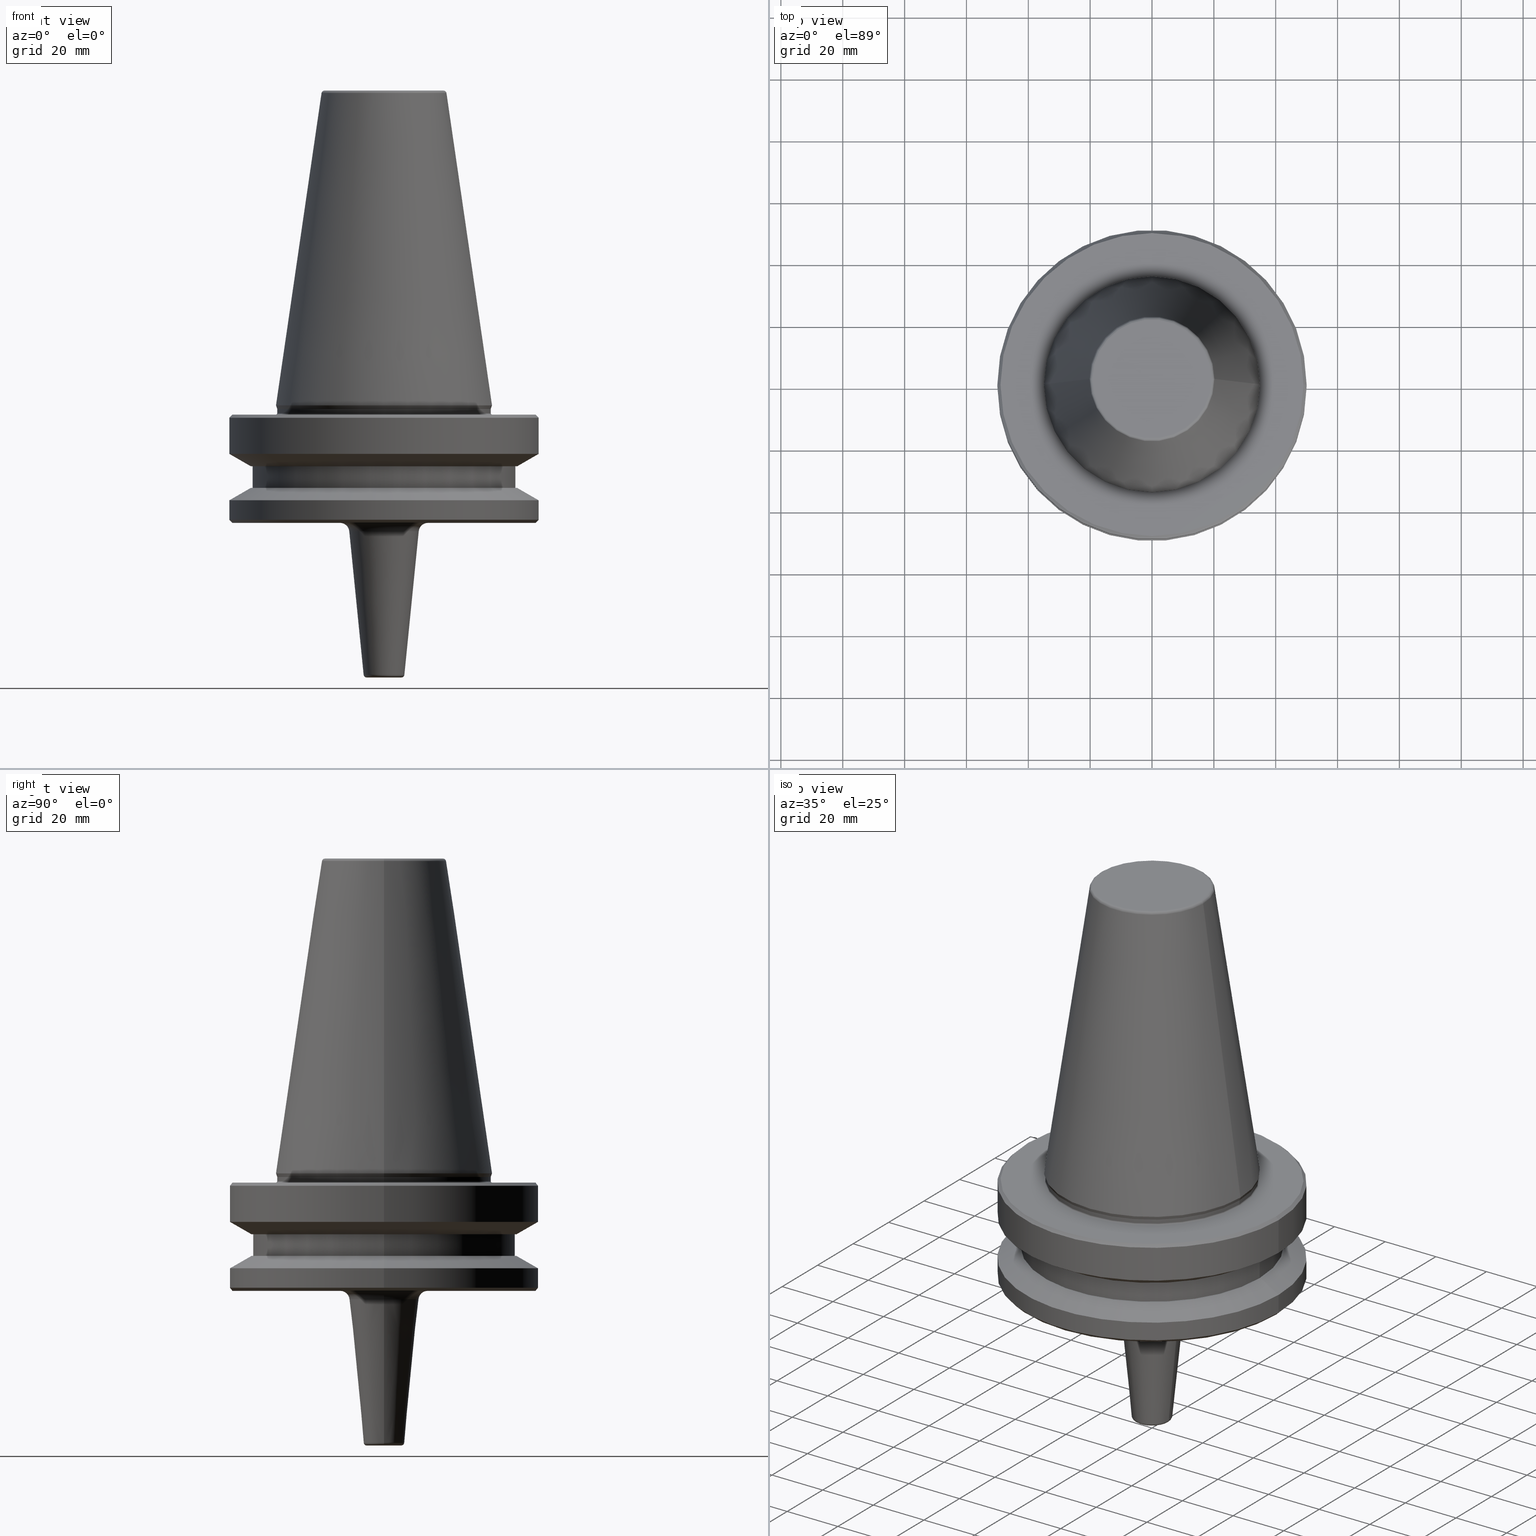
[diagram: canonical four-view strip — front | top / right | iso, engineering-drawing reading convention]
A machine part, canonical four-view strip (front | top / right | iso — engineering-drawing reading convention). The complete STEP part file that produces these views, byte-faithful:
ISO-10303-21;
HEADER;
FILE_DESCRIPTION (( 'STEP AP203' ),
    '1' );
FILE_NAME ('BT50 MCA08 050 AD+B-2.5G 25000 SL.STEP',
    '2019-05-24T10:38:24',
    ( '' ),
    ( '' ),
    'SwSTEP 2.0',
    'SolidWorks 2014',
    '' );
FILE_SCHEMA (( 'CONFIG_CONTROL_DESIGN' ));
ENDSEC;

DATA;
#1 = ORIENTED_EDGE ( 'NONE', *, *, #649, .T. ) ;
#2 = FACE_OUTER_BOUND ( 'NONE', #643, .T. ) ;
#3 = CIRCLE ( 'NONE', #378, 0.5000000000000004400 ) ;
#4 = CARTESIAN_POINT ( 'NONE',  ( 0.0000000000000000000, 0.0000000000000000000, 124.5046326327850600 ) ) ;
#5 = MANIFOLD_SOLID_BREP ( 'Fillet1', #790 ) ;
#6 = AXIS2_PLACEMENT_3D ( 'NONE', #698, #837, #51 ) ;
#7 = DIRECTION ( 'NONE',  ( 0.0000000000000000000, 0.0000000000000000000, -1.000000000000000000 ) ) ;
#8 = CYLINDRICAL_SURFACE ( 'NONE', #16, 50.00000000000000000 ) ;
#9 = CIRCLE ( 'NONE', #735, 5.595012437887962900 ) ;
#10 = VERTEX_POINT ( 'NONE', #314 ) ;
#11 = CARTESIAN_POINT ( 'NONE',  ( 0.0000000000000000000, 0.0000000000000000000, 0.0000000000000000000 ) ) ;
#12 = ORGANIZATION ( 'UNSPECIFIED', 'UNSPECIFIED', '' ) ;
#13 = ORIENTED_EDGE ( 'NONE', *, *, #225, .F. ) ;
#14 = EDGE_CURVE ( 'NONE', #406, #310, #288, .T. ) ;
#15 = DIRECTION ( 'NONE',  ( 1.000000000000000000, 0.0000000000000000000, 0.0000000000000000000 ) ) ;
#16 = AXIS2_PLACEMENT_3D ( 'NONE', #624, #441, #759 ) ;
#17 = CARTESIAN_POINT ( 'NONE',  ( -42.50000000000000000, 5.204748896376250900E-015, -19.70000000000001000 ) ) ;
#18 = ADVANCED_FACE ( 'NONE', ( #500 ), #89, .F. ) ;
#19 = EDGE_CURVE ( 'NONE', #594, #559, #692, .T. ) ;
#20 = APPROVAL_STATUS ( 'not_yet_approved' ) ;
#21 = DIRECTION ( 'NONE',  ( -0.09950371902099863800, 1.218569110023235800E-017, 0.9950371902099891500 ) ) ;
#22 = AXIS2_PLACEMENT_3D ( 'NONE', #608, #1001, #452 ) ;
#23 = ORIENTED_EDGE ( 'NONE', *, *, #375, .F. ) ;
#24 = FACE_OUTER_BOUND ( 'NONE', #279, .T. ) ;
#25 = ADVANCED_FACE ( 'NONE', ( #475 ), #625, .T. ) ;
#26 = TOROIDAL_SURFACE ( 'NONE', #980, 35.00000000000000000, 0.5000000000000004400 ) ;
#27 = ADVANCED_FACE ( 'NONE', ( #893 ), #26, .F. ) ;
#28 = CC_DESIGN_APPROVAL ( #987, ( #937 ) ) ;
#29 = EDGE_CURVE ( 'NONE', #310, #406, #823, .T. ) ;
#30 = CIRCLE ( 'NONE', #813, 34.50000000000000000 ) ;
#31 = LINE ( 'NONE', #139, #605 ) ;
#32 = DIRECTION ( 'NONE',  ( 1.224646799147353200E-016, 1.000000000000000000, 0.0000000000000000000 ) ) ;
#33 = ORIENTED_EDGE ( 'NONE', *, *, #717, .T. ) ;
#34 = AXIS2_PLACEMENT_3D ( 'NONE', #796, #745, #302 ) ;
#35 = DIRECTION ( 'NONE',  ( 0.0000000000000000000, 0.0000000000000000000, -1.000000000000000000 ) ) ;
#36 = DIRECTION ( 'NONE',  ( 1.224646799147353200E-016, 1.000000000000000000, 0.0000000000000000000 ) ) ;
#37 = DIRECTION ( 'NONE',  ( 1.000000000000000000, 0.0000000000000000000, 0.0000000000000000000 ) ) ;
#38 = CARTESIAN_POINT ( 'NONE',  ( 50.00000000000000000, 0.0000000000000000000, -3.999999999999989800 ) ) ;
#39 = EDGE_CURVE ( 'NONE', #883, #263, #408, .T. ) ;
#40 = CARTESIAN_POINT ( 'NONE',  ( 5.595012437887962900, 0.0000000000000000000, -87.00000000000002800 ) ) ;
#41 = EDGE_LOOP ( 'NONE', ( #336, #925 ) ) ;
#42 = ORIENTED_EDGE ( 'NONE', *, *, #524, .T. ) ;
#43 = CARTESIAN_POINT ( 'NONE',  ( 34.92499999999999700, 4.277078946022130900E-015, 0.0000000000000000000 ) ) ;
#44 = ORIENTED_EDGE ( 'NONE', *, *, #561, .T. ) ;
#45 = CIRCLE ( 'NONE', #371, 50.00000000000000000 ) ;
#46 = AXIS2_PLACEMENT_3D ( 'NONE', #696, #863, #950 ) ;
#47 = ORIENTED_EDGE ( 'NONE', *, *, #368, .F. ) ;
#48 = DIRECTION ( 'NONE',  ( -0.0000000000000000000, -0.0000000000000000000, 1.000000000000000000 ) ) ;
#49 = DIRECTION ( 'NONE',  ( -0.0000000000000000000, -0.0000000000000000000, 1.000000000000000000 ) ) ;
#50 = AXIS2_PLACEMENT_3D ( 'NONE', #260, #599, #124 ) ;
#51 = DIRECTION ( 'NONE',  ( 1.000000000000000000, 0.0000000000000000000, 0.0000000000000000000 ) ) ;
#52 = CARTESIAN_POINT ( 'NONE',  ( 14.21496268633630500, 0.0000000000000000000, -41.00000000000000700 ) ) ;
#53 = FACE_OUTER_BOUND ( 'NONE', #981, .T. ) ;
#54 = CIRCLE ( 'NONE', #357, 34.50000000000000000 ) ;
#55 = DIRECTION ( 'NONE',  ( 1.000000000000000000, 0.0000000000000000000, 0.0000000000000000000 ) ) ;
#56 = DIRECTION ( 'NONE',  ( 1.000000000000000000, 0.0000000000000000000, 0.0000000000000000000 ) ) ;
#57 = CARTESIAN_POINT ( 'NONE',  ( -34.50000000000000000, 4.225031457058368900E-015, 124.5046326327850600 ) ) ;
#58 = EDGE_CURVE ( 'NONE', #10, #773, #427, .T. ) ;
#59 = DIRECTION ( 'NONE',  ( -1.000000000000000000, 0.0000000000000000000, -0.0000000000000000000 ) ) ;
#60 = CARTESIAN_POINT ( 'NONE',  ( 0.0000000000000000000, 0.0000000000000000000, -87.00000000000002800 ) ) ;
#61 = AXIS2_PLACEMENT_3D ( 'NONE', #786, #853, #384 ) ;
#62 = CONICAL_SURFACE ( 'NONE', #538, 34.50000000000000000, 0.3490658503988654500 ) ;
#63 = CARTESIAN_POINT ( 'NONE',  ( -6.590049628097950100, 8.070483183272360100E-016, -87.09950371902103000 ) ) ;
#64 = ORIENTED_EDGE ( 'NONE', *, *, #29, .T. ) ;
#65 = ORIENTED_EDGE ( 'NONE', *, *, #129, .T. ) ;
#66 = DIRECTION ( 'NONE',  ( 1.000000000000000000, 0.0000000000000000000, 0.0000000000000000000 ) ) ;
#67 = DIRECTION ( 'NONE',  ( 1.000000000000000000, 0.0000000000000000000, 0.0000000000000000000 ) ) ;
#68 = ORIENTED_EDGE ( 'NONE', *, *, #502, .F. ) ;
#69 = AXIS2_PLACEMENT_3D ( 'NONE', #600, #762, #121 ) ;
#70 = DIRECTION ( 'NONE',  ( 0.0000000000000000000, 0.0000000000000000000, -1.000000000000000000 ) ) ;
#71 = DIRECTION ( 'NONE',  ( 1.000000000000000000, 0.0000000000000000000, 0.0000000000000000000 ) ) ;
#72 = EDGE_LOOP ( 'NONE', ( #850, #423 ) ) ;
#73 = EDGE_CURVE ( 'NONE', #923, #711, #200, .T. ) ;
#74 = CARTESIAN_POINT ( 'NONE',  ( 0.0000000000000000000, 0.0000000000000000000, -3.999999999999989800 ) ) ;
#75 = CC_DESIGN_PERSON_AND_ORGANIZATION_ASSIGNMENT ( #722, #278, ( #937 ) ) ;
#76 = CIRCLE ( 'NONE', #493, 1.000000000000000900 ) ;
#77 = CARTESIAN_POINT ( 'NONE',  ( 43.07217782649103600, 0.0000000000000000000, -19.70000000000001000 ) ) ;
#78 = VECTOR ( 'NONE', #774, 1000.000000000000000 ) ;
#79 = CARTESIAN_POINT ( 'NONE',  ( 0.0000000000000000000, 0.0000000000000000000, -2.499999999999988500 ) ) ;
#80 = AXIS2_PLACEMENT_3D ( 'NONE', #588, #587, #553 ) ;
#81 = ORIENTED_EDGE ( 'NONE', *, *, #127, .F. ) ;
#82 = DIRECTION ( 'NONE',  ( -0.0000000000000000000, -0.0000000000000000000, 1.000000000000000000 ) ) ;
#83 = COORDINATED_UNIVERSAL_TIME_OFFSET ( 5, 30, .AHEAD. ) ;
#84 = DIRECTION ( 'NONE',  ( 1.000000000000000000, 0.0000000000000000000, 0.0000000000000000000 ) ) ;
#85 = LINE ( 'NONE', #637, #495 ) ;
#86 = ADVANCED_FACE ( 'NONE', ( #224 ), #783, .T. ) ;
#87 = ORIENTED_EDGE ( 'NONE', *, *, #429, .F. ) ;
#88 = CARTESIAN_POINT ( 'NONE',  ( 0.0000000000000000000, 0.0000000000000000000, -38.00000000000000700 ) ) ;
#89 = TOROIDAL_SURFACE ( 'NONE', #817, 14.21496268633630500, 3.000000000000000000 ) ;
#90 = COORDINATED_UNIVERSAL_TIME_OFFSET ( 5, 30, .AHEAD. ) ;
#91 = EDGE_CURVE ( 'NONE', #773, #10, #985, .T. ) ;
#92 = EDGE_LOOP ( 'NONE', ( #576, #689, #622, #143 ) ) ;
#93 = ADVANCED_FACE ( 'NONE', ( #181 ), #803, .T. ) ;
#94 = AXIS2_PLACEMENT_3D ( 'NONE', #619, #289, #640 ) ;
#95 = DIRECTION ( 'NONE',  ( 0.7071067811865474600, 8.659560562354931600E-017, -0.7071067811865475700 ) ) ;
#96 = ORIENTED_EDGE ( 'NONE', *, *, #961, .F. ) ;
#97 = ADVANCED_FACE ( 'NONE', ( #383 ), #154, .T. ) ;
#98 = CIRCLE ( 'NONE', #187, 5.595012437887962900 ) ;
#99 = AXIS2_PLACEMENT_3D ( 'NONE', #861, #777, #162 ) ;
#100 = ORIENTED_EDGE ( 'NONE', *, *, #402, .F. ) ;
#101 = CIRCLE ( 'NONE', #144, 50.00000000000000000 ) ;
#102 = CONICAL_SURFACE ( 'NONE', #805, 49.00000000000000000, 0.7853981633974482800 ) ;
#103 = CARTESIAN_POINT ( 'NONE',  ( -35.00000000000000000, 4.286263797015737300E-015, -2.999999999999995600 ) ) ;
#104 = EDGE_LOOP ( 'NONE', ( #844, #552, #114, #955 ) ) ;
#105 = CARTESIAN_POINT ( 'NONE',  ( -14.21496268633630500, 1.740830855382081800E-015, -38.00000000000000700 ) ) ;
#106 = LINE ( 'NONE', #526, #917 ) ;
#107 = CARTESIAN_POINT ( 'NONE',  ( -11.22985111570633900, 1.375260122375110100E-015, -40.70148884293698900 ) ) ;
#108 = CIRCLE ( 'NONE', #34, 14.21496268633630500 ) ;
#109 = EDGE_LOOP ( 'NONE', ( #241, #969 ) ) ;
#110 = DIRECTION ( 'NONE',  ( -0.0000000000000000000, -0.0000000000000000000, 1.000000000000000000 ) ) ;
#111 = AXIS2_PLACEMENT_3D ( 'NONE', #457, #544, #628 ) ;
#112 = ORIENTED_EDGE ( 'NONE', *, *, #976, .T. ) ;
#113 = DATE_AND_TIME ( #318, #528 ) ;
#114 = ORIENTED_EDGE ( 'NONE', *, *, #156, .T. ) ;
#115 = CARTESIAN_POINT ( 'NONE',  ( -49.00000000000000000, 6.000769315822030900E-015, -38.00000000000002100 ) ) ;
#116 = AXIS2_PLACEMENT_3D ( 'NONE', #512, #440, #455 ) ;
#117 = ORIENTED_EDGE ( 'NONE', *, *, #819, .F. ) ;
#118 = ORIENTED_EDGE ( 'NONE', *, *, #578, .F. ) ;
#119 = CARTESIAN_POINT ( 'NONE',  ( 0.0000000000000000000, 0.0000000000000000000, -38.00000000000002100 ) ) ;
#120 = VECTOR ( 'NONE', #21, 1000.000000000000200 ) ;
#121 = DIRECTION ( 'NONE',  ( 1.000000000000000000, 0.0000000000000000000, 0.0000000000000000000 ) ) ;
#122 = VERTEX_POINT ( 'NONE', #685 ) ;
#123 = LINE ( 'NONE', #57, #983 ) ;
#124 = DIRECTION ( 'NONE',  ( -1.000000000000000000, 0.0000000000000000000, 0.0000000000000000000 ) ) ;
#125 = CC_DESIGN_PERSON_AND_ORGANIZATION_ASSIGNMENT ( #501, #153, ( #937 ) ) ;
#126 = CARTESIAN_POINT ( 'NONE',  ( 0.0000000000000000000, 0.0000000000000000000, -3.999999999999989800 ) ) ;
#127 = EDGE_CURVE ( 'NONE', #866, #135, #3, .T. ) ;
#128 = LINE ( 'NONE', #849, #940 ) ;
#129 = EDGE_CURVE ( 'NONE', #866, #911, #354, .T. ) ;
#130 = AXIS2_PLACEMENT_3D ( 'NONE', #420, #447, #37 ) ;
#131 = DIRECTION ( 'NONE',  ( 0.1443082272673000800, 1.767266086135278300E-017, -0.9895327864921754600 ) ) ;
#132 = APPROVAL_STATUS ( 'not_yet_approved' ) ;
#133 = VECTOR ( 'NONE', #131, 1000.000000000000000 ) ;
#134 = DIRECTION ( 'NONE',  ( -0.0000000000000000000, -0.0000000000000000000, 1.000000000000000000 ) ) ;
#135 = VERTEX_POINT ( 'NONE', #579 ) ;
#136 = EDGE_LOOP ( 'NONE', ( #668, #662, #163, #933 ) ) ;
#137 = PERSON_AND_ORGANIZATION ( #663, #12 ) ;
#138 = DIRECTION ( 'NONE',  ( 0.8660254037844388200, 0.0000000000000000000, 0.4999999999999997200 ) ) ;
#139 = CARTESIAN_POINT ( 'NONE',  ( -50.00000000000000000, 6.123233995736766100E-015, 124.5046326327850600 ) ) ;
#140 = ORIENTED_EDGE ( 'NONE', *, *, #543, .F. ) ;
#141 = CARTESIAN_POINT ( 'NONE',  ( -50.00000000000000000, 6.123233995736766900E-015, -15.70022000322675400 ) ) ;
#142 = CARTESIAN_POINT ( 'NONE',  ( 0.0000000000000000000, 0.0000000000000000000, -3.999999999999989800 ) ) ;
#143 = ORIENTED_EDGE ( 'NONE', *, *, #524, .F. ) ;
#144 = AXIS2_PLACEMENT_3D ( 'NONE', #208, #377, #448 ) ;
#145 = ORIENTED_EDGE ( 'NONE', *, *, #841, .F. ) ;
#146 = ORIENTED_EDGE ( 'NONE', *, *, #223, .F. ) ;
#147 = DIRECTION ( 'NONE',  ( -0.0000000000000000000, -0.0000000000000000000, 1.000000000000000000 ) ) ;
#148 = CARTESIAN_POINT ( 'NONE',  ( -49.00000000000000000, 0.0000000000000000000, -2.999999999999988900 ) ) ;
#149 = EDGE_LOOP ( 'NONE', ( #96, #535, #33, #327 ) ) ;
#150 = DIRECTION ( 'NONE',  ( 1.000000000000000000, 0.0000000000000000000, 0.0000000000000000000 ) ) ;
#151 = ORIENTED_EDGE ( 'NONE', *, *, #621, .T. ) ;
#152 = CIRCLE ( 'NONE', #846, 1.000000000000000000 ) ;
#153 = PERSON_AND_ORGANIZATION_ROLE ( 'design_supplier' ) ;
#154 = CYLINDRICAL_SURFACE ( 'NONE', #430, 42.50000000000000000 ) ;
#155 = AXIS2_PLACEMENT_3D ( 'NONE', #887, #824, #364 ) ;
#156 = EDGE_CURVE ( 'NONE', #911, #406, #944, .T. ) ;
#157 = FACE_OUTER_BOUND ( 'NONE', #396, .T. ) ;
#158 = DIRECTION ( 'NONE',  ( 0.0000000000000000000, 0.0000000000000000000, -1.000000000000000000 ) ) ;
#159 = EDGE_LOOP ( 'NONE', ( #956, #416, #145, #351 ) ) ;
#160 = CYLINDRICAL_SURFACE ( 'NONE', #215, 50.00000000000000000 ) ;
#161 = CYLINDRICAL_SURFACE ( 'NONE', #942, 34.50000000000000000 ) ;
#162 = DIRECTION ( 'NONE',  ( 1.000000000000000000, 0.0000000000000000000, 0.0000000000000000000 ) ) ;
#163 = ORIENTED_EDGE ( 'NONE', *, *, #255, .T. ) ;
#164 = EDGE_CURVE ( 'NONE', #574, #507, #106, .T. ) ;
#165 = PERSON_AND_ORGANIZATION ( #663, #12 ) ;
#166 = PERSON_AND_ORGANIZATION_ROLE ( 'design_owner' ) ;
#167 = DIRECTION ( 'NONE',  ( 1.000000000000000000, 0.0000000000000000000, 0.0000000000000000000 ) ) ;
#168 = APPROVAL_ROLE ( '' ) ;
#169 = ORIENTED_EDGE ( 'NONE', *, *, #461, .T. ) ;
#170 = PRODUCT_DEFINITION_SHAPE ( 'NONE', 'NONE',  #672 ) ;
#171 = ORIENTED_EDGE ( 'NONE', *, *, #578, .T. ) ;
#172 = ADVANCED_FACE ( 'NONE', ( #716 ), #313, .T. ) ;
#173 = CARTESIAN_POINT ( 'NONE',  ( -34.92499999999999700, 0.0000000000000000000, 0.0000000000000000000 ) ) ;
#174 = VERTEX_POINT ( 'NONE', #926 ) ;
#175 = AXIS2_PLACEMENT_3D ( 'NONE', #928, #204, #15 ) ;
#176 = CARTESIAN_POINT ( 'NONE',  ( 0.0000000000000000000, 0.0000000000000000000, 124.5046326327850600 ) ) ;
#177 = VERTEX_POINT ( 'NONE', #713 ) ;
#178 = EDGE_CURVE ( 'NONE', #376, #594, #888, .T. ) ;
#179 = FACE_OUTER_BOUND ( 'NONE', #446, .T. ) ;
#180 = ADVANCED_FACE ( 'NONE', ( #520 ), #62, .T. ) ;
#181 = FACE_OUTER_BOUND ( 'NONE', #748, .T. ) ;
#182 = SECURITY_CLASSIFICATION ( '', '', #627 ) ;
#183 = ORIENTED_EDGE ( 'NONE', *, *, #961, .T. ) ;
#184 = ORIENTED_EDGE ( 'NONE', *, *, #461, .F. ) ;
#185 = DIRECTION ( 'NONE',  ( 1.224646799147353200E-016, 1.000000000000000000, 0.0000000000000000000 ) ) ;
#186 = FACE_BOUND ( 'NONE', #694, .T. ) ;
#188 = FACE_OUTER_BOUND ( 'NONE', #72, .T. ) ;
#187 = AXIS2_PLACEMENT_3D ( 'NONE', #943, #820, #71 ) ;
#189 = VERTEX_POINT ( 'NONE', #398 ) ;
#190 = COORDINATED_UNIVERSAL_TIME_OFFSET ( 5, 30, .AHEAD. ) ;
#191 = DIRECTION ( 'NONE',  ( -0.0000000000000000000, -0.0000000000000000000, 1.000000000000000000 ) ) ;
#192 = CARTESIAN_POINT ( 'NONE',  ( 0.0000000000000000000, 0.0000000000000000000, -26.69999999999998900 ) ) ;
#193 = EDGE_CURVE ( 'NONE', #326, #725, #469, .T. ) ;
#194 = EDGE_LOOP ( 'NONE', ( #414, #732, #388, #64 ) ) ;
#195 = DIRECTION ( 'NONE',  ( 0.0000000000000000000, -1.000000000000000000, 0.0000000000000000000 ) ) ;
#196 = ORIENTED_EDGE ( 'NONE', *, *, #270, .T. ) ;
#197 = DIRECTION ( 'NONE',  ( -0.0000000000000000000, -0.0000000000000000000, 1.000000000000000000 ) ) ;
#198 = AXIS2_PLACEMENT_3D ( 'NONE', #761, #832, #836 ) ;
#199 = VECTOR ( 'NONE', #138, 1000.000000000000000 ) ;
#200 = CIRCLE ( 'NONE', #116, 1.000000000000000900 ) ;
#201 = CARTESIAN_POINT ( 'NONE',  ( 0.0000000000000000000, 0.0000000000000000000, -26.69999999999998900 ) ) ;
#202 = AXIS2_PLACEMENT_3D ( 'NONE', #753, #671, #294 ) ;
#203 = LINE ( 'NONE', #173, #993 ) ;
#204 = DIRECTION ( 'NONE',  ( -0.0000000000000000000, -0.0000000000000000000, 1.000000000000000000 ) ) ;
#205 = LINE ( 'NONE', #700, #233 ) ;
#206 = ORIENTED_EDGE ( 'NONE', *, *, #488, .T. ) ;
#207 = CARTESIAN_POINT ( 'NONE',  ( 0.0000000000000000000, 43.07217782649103600, -19.70000000000000300 ) ) ;
#208 = CARTESIAN_POINT ( 'NONE',  ( 0.0000000000000000000, 0.0000000000000000000, -30.69977999677324500 ) ) ;
#209 = SHAPE_DEFINITION_REPRESENTATION ( #170, #634 ) ;
#210 = EDGE_LOOP ( 'NONE', ( #449, #1000, #280, #316 ) ) ;
#211 = DIRECTION ( 'NONE',  ( -0.7071067811865474600, 0.0000000000000000000, -0.7071067811865475700 ) ) ;
#212 = EDGE_CURVE ( 'NONE', #504, #310, #85, .T. ) ;
#213 = CARTESIAN_POINT ( 'NONE',  ( -50.00000000000000000, 6.123233995736766100E-015, -37.00000000000002100 ) ) ;
#214 = CARTESIAN_POINT ( 'NONE',  ( 0.0000000000000000000, 0.0000000000000000000, -2.500000000000002200 ) ) ;
#215 = AXIS2_PLACEMENT_3D ( 'NONE', #176, #226, #658 ) ;
#216 = DIRECTION ( 'NONE',  ( -0.0000000000000000000, -0.0000000000000000000, 1.000000000000000000 ) ) ;
#217 = EDGE_CURVE ( 'NONE', #174, #219, #688, .T. ) ;
#218 = DIRECTION ( 'NONE',  ( -0.0000000000000000000, -0.0000000000000000000, 1.000000000000000000 ) ) ;
#219 = VERTEX_POINT ( 'NONE', #342 ) ;
#220 = DIRECTION ( 'NONE',  ( -0.8660254037844383700, 0.0000000000000000000, -0.5000000000000004400 ) ) ;
#221 = CIRCLE ( 'NONE', #421, 50.00000000000000000 ) ;
#222 = AXIS2_PLACEMENT_3D ( 'NONE', #362, #358, #373 ) ;
#223 = EDGE_CURVE ( 'NONE', #259, #345, #258, .T. ) ;
#224 = FACE_OUTER_BOUND ( 'NONE', #583, .T. ) ;
#225 = EDGE_CURVE ( 'NONE', #953, #189, #570, .T. ) ;
#226 = DIRECTION ( 'NONE',  ( -0.0000000000000000000, -0.0000000000000000000, 1.000000000000000000 ) ) ;
#227 = DIRECTION ( 'NONE',  ( 1.000000000000000000, 0.0000000000000000000, 0.0000000000000000000 ) ) ;
#228 = CC_DESIGN_PERSON_AND_ORGANIZATION_ASSIGNMENT ( #290, #300, ( #182 ) ) ;
#229 = CARTESIAN_POINT ( 'NONE',  ( 0.0000000000000000000, 0.0000000000000000000, 0.0000000000000000000 ) ) ;
#230 = EDGE_CURVE ( 'NONE', #741, #617, #285, .T. ) ;
#231 = TOROIDAL_SURFACE ( 'NONE', #862, 5.595012437887962900, 1.000000000000000200 ) ;
#232 = EDGE_CURVE ( 'NONE', #712, #523, #356, .T. ) ;
#233 = VECTOR ( 'NONE', #852, 1000.000000000000000 ) ;
#234 = EDGE_LOOP ( 'NONE', ( #895, #239, #393, #347 ) ) ;
#235 = DIRECTION ( 'NONE',  ( 1.000000000000000000, 0.0000000000000000000, 0.0000000000000000000 ) ) ;
#236 = AXIS2_PLACEMENT_3D ( 'NONE', #585, #916, #167 ) ;
#237 = UNCERTAINTY_MEASURE_WITH_UNIT (LENGTH_MEASURE( 1.000000000000000100E-005 ), #397, 'distance_accuracy_value', 'NONE');
#238 = DIRECTION ( 'NONE',  ( 0.0000000000000000000, 0.0000000000000000000, -1.000000000000000000 ) ) ;
#239 = ORIENTED_EDGE ( 'NONE', *, *, #212, .T. ) ;
#240 = DATE_TIME_ROLE ( 'creation_date' ) ;
#241 = ORIENTED_EDGE ( 'NONE', *, *, #502, .T. ) ;
#242 = ADVANCED_FACE ( 'NONE', ( #157 ), #331, .T. ) ;
#243 = VERTEX_POINT ( 'NONE', #682 ) ;
#244 = ORIENTED_EDGE ( 'NONE', *, *, #548, .T. ) ;
#245 = AXIS2_PLACEMENT_3D ( 'NONE', #702, #848, #361 ) ;
#246 = ADVANCED_FACE ( 'NONE', ( #757, #545 ), #707, .F. ) ;
#247 = ADVANCED_FACE ( 'NONE', ( #572 ), #102, .T. ) ;
#248 = AXIS2_PLACEMENT_3D ( 'NONE', #913, #744, #597 ) ;
#249 = VECTOR ( 'NONE', #211, 1000.000000000000000 ) ;
#250 = CIRCLE ( 'NONE', #202, 20.20381605152244500 ) ;
#251 = EDGE_CURVE ( 'NONE', #953, #517, #963, .T. ) ;
#252 = CARTESIAN_POINT ( 'NONE',  ( 34.50000000000000000, 0.0000000000000000000, -2.499999999999988500 ) ) ;
#253 = DIRECTION ( 'NONE',  ( -0.0000000000000000000, -0.0000000000000000000, 1.000000000000000000 ) ) ;
#254 = ORIENTED_EDGE ( 'NONE', *, *, #251, .T. ) ;
#255 = EDGE_CURVE ( 'NONE', #122, #243, #128, .T. ) ;
#256 = DIRECTION ( 'NONE',  ( -0.0000000000000000000, -0.0000000000000000000, 1.000000000000000000 ) ) ;
#257 = APPROVAL_DATE_TIME ( #467, #330 ) ;
#258 = CIRCLE ( 'NONE', #648, 42.50000000000000000 ) ;
#259 = VERTEX_POINT ( 'NONE', #840 ) ;
#260 = CARTESIAN_POINT ( 'NONE',  ( 0.0000000000000000000, 0.0000000000000000000, -40.70148884293698900 ) ) ;
#261 = AXIS2_PLACEMENT_3D ( 'NONE', #927, #7, #939 ) ;
#262 = DIRECTION ( 'NONE',  ( 1.000000000000000000, 0.0000000000000000000, 0.0000000000000000000 ) ) ;
#263 = VERTEX_POINT ( 'NONE', #534 ) ;
#264 = ORIENTED_EDGE ( 'NONE', *, *, #604, .T. ) ;
#265 = EDGE_CURVE ( 'NONE', #243, #219, #734, .T. ) ;
#266 = AXIS2_PLACEMENT_3D ( 'NONE', #88, #529, #616 ) ;
#267 = EDGE_LOOP ( 'NONE', ( #541, #720 ) ) ;
#268 = EDGE_CURVE ( 'NONE', #697, #559, #708, .T. ) ;
#269 = DIRECTION ( 'NONE',  ( 0.0000000000000000000, -1.000000000000000000, 0.0000000000000000000 ) ) ;
#270 = EDGE_CURVE ( 'NONE', #135, #867, #308, .T. ) ;
#271 = DIRECTION ( 'NONE',  ( -0.0000000000000000000, -0.0000000000000000000, 1.000000000000000000 ) ) ;
#272 = CIRCLE ( 'NONE', #438, 42.50000000000000000 ) ;
#273 = DIRECTION ( 'NONE',  ( 0.09950371902099863800, 0.0000000000000000000, 0.9950371902099891500 ) ) ;
#274 = CC_DESIGN_DATE_AND_TIME_ASSIGNMENT ( #714, #873, ( #182 ) ) ;
#275 = CONICAL_SURFACE ( 'NONE', #198, 50.00000000000000000, 1.047197551196597200 ) ;
#276 = CARTESIAN_POINT ( 'NONE',  ( 0.0000000000000000000, 0.0000000000000000000, 100.7999999999999800 ) ) ;
#277 = DIRECTION ( 'NONE',  ( -0.0000000000000000000, -0.0000000000000000000, 1.000000000000000000 ) ) ;
#278 = PERSON_AND_ORGANIZATION_ROLE ( 'creator' ) ;
#279 = EDGE_LOOP ( 'NONE', ( #564, #635 ) ) ;
#280 = ORIENTED_EDGE ( 'NONE', *, *, #14, .T. ) ;
#281 = AXIS2_PLACEMENT_3D ( 'NONE', #498, #277, #679 ) ;
#282 = APPROVAL_ROLE ( '' ) ;
#283 = DIRECTION ( 'NONE',  ( 1.000000000000000000, 0.0000000000000000000, 0.0000000000000000000 ) ) ;
#284 = APPROVAL_PERSON_ORGANIZATION ( #494, #330, #842 ) ;
#285 = LINE ( 'NONE', #506, #785 ) ;
#286 = CARTESIAN_POINT ( 'NONE',  ( 0.0000000000000000000, 0.0000000000000000000, 0.0000000000000000000 ) ) ;
#287 = ORIENTED_EDGE ( 'NONE', *, *, #265, .F. ) ;
#288 = CIRCLE ( 'NONE', #726, 34.92499999999999700 ) ;
#289 = DIRECTION ( 'NONE',  ( 0.0000000000000000000, 0.0000000000000000000, -1.000000000000000000 ) ) ;
#290 = PERSON_AND_ORGANIZATION ( #663, #12 ) ;
#291 = DIRECTION ( 'NONE',  ( -0.0000000000000000000, -0.0000000000000000000, 1.000000000000000000 ) ) ;
#292 = EDGE_CURVE ( 'NONE', #259, #263, #910, .T. ) ;
#293 = EDGE_LOOP ( 'NONE', ( #749, #670, #65, #47 ) ) ;
#294 = DIRECTION ( 'NONE',  ( 1.000000000000000000, 0.0000000000000000000, 0.0000000000000000000 ) ) ;
#295 = AXIS2_PLACEMENT_3D ( 'NONE', #1002, #556, #297 ) ;
#296 = CARTESIAN_POINT ( 'NONE',  ( -34.50000000000000000, 4.225031457058368900E-015, -1.167677903268202300 ) ) ;
#297 = DIRECTION ( 'NONE',  ( 1.000000000000000000, 0.0000000000000000000, 0.0000000000000000000 ) ) ;
#298 = VERTEX_POINT ( 'NONE', #946 ) ;
#299 = CIRCLE ( 'NONE', #549, 3.000000000000002700 ) ;
#300 = PERSON_AND_ORGANIZATION_ROLE ( 'classification_officer' ) ;
#301 = VERTEX_POINT ( 'NONE', #431 ) ;
#302 = DIRECTION ( 'NONE',  ( 1.000000000000000000, 0.0000000000000000000, 0.0000000000000000000 ) ) ;
#303 = TOROIDAL_SURFACE ( 'NONE', #295, 14.21496268633630500, 3.000000000000000000 ) ;
#304 = AXIS2_PLACEMENT_3D ( 'NONE', #142, #532, #865 ) ;
#305 = CARTESIAN_POINT ( 'NONE',  ( 19.21428326503027200, 0.0000000000000000000, 101.7999999999999800 ) ) ;
#306 = DIRECTION ( 'NONE',  ( 0.0000000000000000000, -0.0000000000000000000, 1.000000000000000000 ) ) ;
#307 = EDGE_CURVE ( 'NONE', #911, #504, #460, .T. ) ;
#308 = CIRCLE ( 'NONE', #99, 35.00000000000000000 ) ;
#309 = EDGE_CURVE ( 'NONE', #298, #923, #250, .T. ) ;
#310 = VERTEX_POINT ( 'NONE', #510 ) ;
#311 = APPLICATION_PROTOCOL_DEFINITION ( 'international standard', 'config_control_design', 1994, #791 ) ;
#312 = DIRECTION ( 'NONE',  ( 1.000000000000000000, 0.0000000000000000000, 0.0000000000000000000 ) ) ;
#313 = TOROIDAL_SURFACE ( 'NONE', #480, 19.21428326503027200, 0.9999999999999983300 ) ;
#314 = CARTESIAN_POINT ( 'NONE',  ( 49.00000000000000000, 6.062001655779398500E-015, -2.999999999999988900 ) ) ;
#315 = CIRCLE ( 'NONE', #991, 50.00000000000000000 ) ;
#316 = ORIENTED_EDGE ( 'NONE', *, *, #618, .F. ) ;
#317 = ORIENTED_EDGE ( 'NONE', *, *, #375, .T. ) ;
#318 = CALENDAR_DATE ( 2019, 24, 5 ) ;
#319 = AXIS2_PLACEMENT_3D ( 'NONE', #229, #158, #856 ) ;
#320 = ADVANCED_FACE ( 'NONE', ( #857 ), #831, .T. ) ;
#321 = DIRECTION ( 'NONE',  ( -0.0000000000000000000, -0.0000000000000000000, 1.000000000000000000 ) ) ;
#322 = ORIENTED_EDGE ( 'NONE', *, *, #429, .T. ) ;
#323 = ADVANCED_FACE ( 'NONE', ( #652 ), #412, .T. ) ;
#324 = AXIS2_PLACEMENT_3D ( 'NONE', #276, #321, #758 ) ;
#325 = VERTEX_POINT ( 'NONE', #419 ) ;
#326 = VERTEX_POINT ( 'NONE', #854 ) ;
#327 = ORIENTED_EDGE ( 'NONE', *, *, #665, .F. ) ;
#328 = FACE_OUTER_BOUND ( 'NONE', #766, .T. ) ;
#329 = ADVANCED_FACE ( 'NONE', ( #677 ), #435, .T. ) ;
#330 = APPROVAL ( #20, 'UNSPECIFIED' ) ;
#331 = CYLINDRICAL_SURFACE ( 'NONE', #902, 42.50000000000000000 ) ;
#332 = EDGE_CURVE ( 'NONE', #122, #174, #632, .T. ) ;
#333 = AXIS2_PLACEMENT_3D ( 'NONE', #900, #667, #227 ) ;
#334 = DIRECTION ( 'NONE',  ( 1.000000000000000000, 0.0000000000000000000, 0.0000000000000000000 ) ) ;
#335 = FACE_OUTER_BOUND ( 'NONE', #293, .T. ) ;
#336 = ORIENTED_EDGE ( 'NONE', *, *, #403, .F. ) ;
#337 = DIRECTION ( 'NONE',  ( -0.0000000000000000000, -0.0000000000000000000, 1.000000000000000000 ) ) ;
#338 = ORIENTED_EDGE ( 'NONE', *, *, #577, .F. ) ;
#339 = DATE_AND_TIME ( #555, #769 ) ;
#340 = EDGE_CURVE ( 'NONE', #345, #883, #205, .T. ) ;
#341 = DIRECTION ( 'NONE',  ( -0.0000000000000000000, -0.0000000000000000000, 1.000000000000000000 ) ) ;
#342 = CARTESIAN_POINT ( 'NONE',  ( 50.00000000000000000, 0.0000000000000000000, -30.69977999677324500 ) ) ;
#343 = ORIENTED_EDGE ( 'NONE', *, *, #292, .T. ) ;
#344 = CARTESIAN_POINT ( 'NONE',  ( -50.00000000000000000, 6.123233995736766100E-015, -3.999999999999989800 ) ) ;
#345 = VERTEX_POINT ( 'NONE', #584 ) ;
#346 = DIRECTION ( 'NONE',  ( 1.000000000000000000, 0.0000000000000000000, 0.0000000000000000000 ) ) ;
#347 = ORIENTED_EDGE ( 'NONE', *, *, #156, .F. ) ;
#348 = CARTESIAN_POINT ( 'NONE',  ( 0.0000000000000000000, 0.0000000000000000000, 101.7999999999999800 ) ) ;
#349 =( GEOMETRIC_REPRESENTATION_CONTEXT ( 3 ) GLOBAL_UNCERTAINTY_ASSIGNED_CONTEXT ( ( #237 ) ) GLOBAL_UNIT_ASSIGNED_CONTEXT ( ( #397, #784, #932 ) ) REPRESENTATION_CONTEXT ( 'NONE', 'WORKASPACE' ) );
#350 = DIRECTION ( 'NONE',  ( 1.000000000000000000, 0.0000000000000000000, 0.0000000000000000000 ) ) ;
#351 = ORIENTED_EDGE ( 'NONE', *, *, #164, .F. ) ;
#352 = CIRCLE ( 'NONE', #589, 0.9999999999999974500 ) ;
#353 = DIRECTION ( 'NONE',  ( 1.000000000000000000, 0.0000000000000000000, 0.0000000000000000000 ) ) ;
#354 = LINE ( 'NONE', #413, #360 ) ;
#355 = DIRECTION ( 'NONE',  ( -1.000000000000000000, 0.0000000000000000000, -0.0000000000000000000 ) ) ;
#356 = CIRCLE ( 'NONE', #751, 6.590049628097949300 ) ;
#357 = AXIS2_PLACEMENT_3D ( 'NONE', #439, #197, #977 ) ;
#358 = DIRECTION ( 'NONE',  ( -0.0000000000000000000, -0.0000000000000000000, 1.000000000000000000 ) ) ;
#359 = ORIENTED_EDGE ( 'NONE', *, *, #674, .F. ) ;
#360 = VECTOR ( 'NONE', #216, 1000.000000000000000 ) ;
#361 = DIRECTION ( 'NONE',  ( -1.000000000000000000, 0.0000000000000000000, 0.0000000000000000000 ) ) ;
#362 = CARTESIAN_POINT ( 'NONE',  ( 0.0000000000000000000, 0.0000000000000000000, -2.999999999999988900 ) ) ;
#363 = CIRCLE ( 'NONE', #881, 43.07217782649103600 ) ;
#364 = DIRECTION ( 'NONE',  ( 1.000000000000000000, 0.0000000000000000000, 0.0000000000000000000 ) ) ;
#365 = ORIENTED_EDGE ( 'NONE', *, *, #468, .T. ) ;
#366 = DIRECTION ( 'NONE',  ( -0.0000000000000000000, -0.0000000000000000000, 1.000000000000000000 ) ) ;
#367 = APPROVAL_DATE_TIME ( #586, #729 ) ;
#368 = EDGE_CURVE ( 'NONE', #504, #911, #54, .T. ) ;
#369 = DIRECTION ( 'NONE',  ( 1.000000000000000000, 0.0000000000000000000, 0.0000000000000000000 ) ) ;
#370 = DIRECTION ( 'NONE',  ( 1.000000000000000000, 0.0000000000000000000, 0.0000000000000000000 ) ) ;
#371 = AXIS2_PLACEMENT_3D ( 'NONE', #664, #428, #970 ) ;
#372 = DIRECTION ( 'NONE',  ( -0.0000000000000000000, -0.0000000000000000000, 1.000000000000000000 ) ) ;
#373 = DIRECTION ( 'NONE',  ( 1.000000000000000000, 0.0000000000000000000, 0.0000000000000000000 ) ) ;
#374 = ORIENTED_EDGE ( 'NONE', *, *, #717, .F. ) ;
#375 = EDGE_CURVE ( 'NONE', #517, #243, #31, .T. ) ;
#376 = VERTEX_POINT ( 'NONE', #818 ) ;
#377 = DIRECTION ( 'NONE',  ( -0.0000000000000000000, -0.0000000000000000000, 1.000000000000000000 ) ) ;
#378 = AXIS2_PLACEMENT_3D ( 'NONE', #964, #489, #35 ) ;
#379 = ORIENTED_EDGE ( 'NONE', *, *, #232, .T. ) ;
#380 = FACE_BOUND ( 'NONE', #798, .T. ) ;
#381 = DIRECTION ( 'NONE',  ( 1.000000000000000000, 0.0000000000000000000, 0.0000000000000000000 ) ) ;
#382 = EDGE_CURVE ( 'NONE', #174, #122, #808, .T. ) ;
#383 = FACE_OUTER_BOUND ( 'NONE', #565, .T. ) ;
#384 = DIRECTION ( 'NONE',  ( 1.000000000000000000, 0.0000000000000000000, 0.0000000000000000000 ) ) ;
#385 = DIRECTION ( 'NONE',  ( 0.8660254037844383700, 1.060575238724906500E-016, -0.5000000000000004400 ) ) ;
#386 = CC_DESIGN_APPROVAL ( #330, ( #182 ) ) ;
#387 = ORIENTED_EDGE ( 'NONE', *, *, #571, .F. ) ;
#388 = ORIENTED_EDGE ( 'NONE', *, *, #618, .T. ) ;
#389 = DIRECTION ( 'NONE',  ( -0.0000000000000000000, -0.0000000000000000000, 1.000000000000000000 ) ) ;
#390 = VECTOR ( 'NONE', #95, 1000.000000000000000 ) ;
#391 = FACE_OUTER_BOUND ( 'NONE', #104, .T. ) ;
#392 = CARTESIAN_POINT ( 'NONE',  ( 0.0000000000000000000, 0.0000000000000000000, -19.70000000000001000 ) ) ;
#393 = ORIENTED_EDGE ( 'NONE', *, *, #14, .F. ) ;
#394 = AXIS2_PLACEMENT_3D ( 'NONE', #126, #147, #539 ) ;
#395 = APPROVAL_PERSON_ORGANIZATION ( #609, #729, #168 ) ;
#396 = EDGE_LOOP ( 'NONE', ( #890, #821, #343, #479 ) ) ;
#397 =( LENGTH_UNIT ( ) NAMED_UNIT ( * ) SI_UNIT ( .MILLI., .METRE. ) );
#398 = CARTESIAN_POINT ( 'NONE',  ( 49.00000000000000000, 0.0000000000000000000, -38.00000000000002100 ) ) ;
#399 = DIRECTION ( 'NONE',  ( 1.000000000000000000, 0.0000000000000000000, 0.0000000000000000000 ) ) ;
#400 = CARTESIAN_POINT ( 'NONE',  ( 0.0000000000000000000, 0.0000000000000000000, -19.70000000000001000 ) ) ;
#401 = ADVANCED_FACE ( 'NONE', ( #188 ), #812, .F. ) ;
#402 = EDGE_CURVE ( 'NONE', #523, #712, #994, .T. ) ;
#403 = EDGE_CURVE ( 'NONE', #833, #554, #9, .T. ) ;
#404 = ORIENTED_EDGE ( 'NONE', *, *, #178, .F. ) ;
#405 = ADVANCED_FACE ( 'NONE', ( #391 ), #550, .T. ) ;
#406 = VERTEX_POINT ( 'NONE', #756 ) ;
#407 = LINE ( 'NONE', #77, #199 ) ;
#408 = CIRCLE ( 'NONE', #22, 42.50000000000000000 ) ;
#409 = ADVANCED_FACE ( 'NONE', ( #335 ), #161, .T. ) ;
#410 = AXIS2_PLACEMENT_3D ( 'NONE', #780, #934, #381 ) ;
#411 = CIRCLE ( 'NONE', #61, 50.00000000000000000 ) ;
#412 = CONICAL_SURFACE ( 'NONE', #304, 50.00000000000000000, 0.7853981633974482800 ) ;
#413 = CARTESIAN_POINT ( 'NONE',  ( 34.50000000000000000, 0.0000000000000000000, 124.5046326327850600 ) ) ;
#414 = ORIENTED_EDGE ( 'NONE', *, *, #432, .F. ) ;
#415 = DIRECTION ( 'NONE',  ( -0.0000000000000000000, -0.0000000000000000000, 1.000000000000000000 ) ) ;
#416 = ORIENTED_EDGE ( 'NONE', *, *, #230, .T. ) ;
#417 = DIRECTION ( 'NONE',  ( -0.0000000000000000000, -0.0000000000000000000, 1.000000000000000000 ) ) ;
#418 = DIRECTION ( 'NONE',  ( 1.000000000000000000, 0.0000000000000000000, 0.0000000000000000000 ) ) ;
#419 = CARTESIAN_POINT ( 'NONE',  ( -19.21428326503027200, 2.413662457824437800E-015, 101.7999999999999800 ) ) ;
#420 = CARTESIAN_POINT ( 'NONE',  ( 0.0000000000000000000, 0.0000000000000000000, -19.70000000000001000 ) ) ;
#421 = AXIS2_PLACEMENT_3D ( 'NONE', #914, #998, #527 ) ;
#422 = ORIENTED_EDGE ( 'NONE', *, *, #178, .T. ) ;
#423 = ORIENTED_EDGE ( 'NONE', *, *, #505, .T. ) ;
#424 = ORIENTED_EDGE ( 'NONE', *, *, #437, .F. ) ;
#425 = DIRECTION ( 'NONE',  ( -0.0000000000000000000, -0.0000000000000000000, 1.000000000000000000 ) ) ;
#426 = CIRCLE ( 'NONE', #896, 50.00000000000000000 ) ;
#427 = CIRCLE ( 'NONE', #69, 49.00000000000000000 ) ;
#428 = DIRECTION ( 'NONE',  ( -0.0000000000000000000, -0.0000000000000000000, 1.000000000000000000 ) ) ;
#429 = EDGE_CURVE ( 'NONE', #523, #697, #793, .T. ) ;
#430 = AXIS2_PLACEMENT_3D ( 'NONE', #767, #372, #530 ) ;
#431 = CARTESIAN_POINT ( 'NONE',  ( -34.50000000000000000, 4.255647627037052700E-015, -2.499999999999988500 ) ) ;
#432 = EDGE_CURVE ( 'NONE', #923, #406, #967, .T. ) ;
#433 = CC_DESIGN_SECURITY_CLASSIFICATION ( #182, ( #937 ) ) ;
#434 = CIRCLE ( 'NONE', #715, 0.5000000000000004400 ) ;
#435 = CYLINDRICAL_SURFACE ( 'NONE', #459, 50.00000000000000000 ) ;
#436 = ORIENTED_EDGE ( 'NONE', *, *, #536, .F. ) ;
#437 = EDGE_CURVE ( 'NONE', #177, #219, #763, .T. ) ;
#438 = AXIS2_PLACEMENT_3D ( 'NONE', #192, #425, #629 ) ;
#439 = CARTESIAN_POINT ( 'NONE',  ( 0.0000000000000000000, 0.0000000000000000000, -1.167677903268202300 ) ) ;
#440 = DIRECTION ( 'NONE',  ( 0.0000000000000000000, -1.000000000000000000, 0.0000000000000000000 ) ) ;
#441 = DIRECTION ( 'NONE',  ( -0.0000000000000000000, -0.0000000000000000000, 1.000000000000000000 ) ) ;
#442 = CARTESIAN_POINT ( 'NONE',  ( 0.0000000000000000000, 0.0000000000000000000, -87.09950371902103000 ) ) ;
#443 = EDGE_LOOP ( 'NONE', ( #118, #13 ) ) ;
#444 = EDGE_CURVE ( 'NONE', #725, #326, #363, .T. ) ;
#445 = EDGE_LOOP ( 'NONE', ( #661, #379, #322, #736 ) ) ;
#446 = EDGE_LOOP ( 'NONE', ( #660, #809, #100, #140 ) ) ;
#447 = DIRECTION ( 'NONE',  ( -0.0000000000000000000, -0.0000000000000000000, 1.000000000000000000 ) ) ;
#448 = DIRECTION ( 'NONE',  ( 1.000000000000000000, 0.0000000000000000000, 0.0000000000000000000 ) ) ;
#449 = ORIENTED_EDGE ( 'NONE', *, *, #558, .F. ) ;
#450 = DIRECTION ( 'NONE',  ( 1.000000000000000000, 0.0000000000000000000, 0.0000000000000000000 ) ) ;
#451 = ORIENTED_EDGE ( 'NONE', *, *, #444, .F. ) ;
#452 = DIRECTION ( 'NONE',  ( 1.000000000000000000, 0.0000000000000000000, 0.0000000000000000000 ) ) ;
#453 = CARTESIAN_POINT ( 'NONE',  ( 0.0000000000000000000, 0.0000000000000000000, -38.00000000000002100 ) ) ;
#454 = ORIENTED_EDGE ( 'NONE', *, *, #73, .T. ) ;
#455 = DIRECTION ( 'NONE',  ( 0.0000000000000000000, 0.0000000000000000000, -1.000000000000000000 ) ) ;
#456 = DIRECTION ( 'NONE',  ( -0.0000000000000000000, -0.0000000000000000000, 1.000000000000000000 ) ) ;
#457 = CARTESIAN_POINT ( 'NONE',  ( 0.0000000000000000000, 0.0000000000000000000, -40.70148884293698900 ) ) ;
#458 = FACE_BOUND ( 'NONE', #610, .T. ) ;
#460 = CIRCLE ( 'NONE', #155, 34.50000000000000000 ) ;
#459 = AXIS2_PLACEMENT_3D ( 'NONE', #542, #456, #67 ) ;
#461 = EDGE_CURVE ( 'NONE', #866, #301, #945, .T. ) ;
#462 = CARTESIAN_POINT ( 'NONE',  ( 0.0000000000000000000, 0.0000000000000000000, -1.167677903268202300 ) ) ;
#463 = EDGE_CURVE ( 'NONE', #574, #741, #315, .T. ) ;
#464 = CARTESIAN_POINT ( 'NONE',  ( 0.0000000000000000000, 0.0000000000000000000, -38.00000000000002100 ) ) ;
#465 = EDGE_LOOP ( 'NONE', ( #169, #563, #567, #742 ) ) ;
#466 = APPLICATION_PROTOCOL_DEFINITION ( 'international standard', 'config_control_design', 1994, #551 ) ;
#467 = DATE_AND_TIME ( #687, #886 ) ;
#468 = EDGE_CURVE ( 'NONE', #594, #376, #108, .T. ) ;
#469 = CIRCLE ( 'NONE', #596, 43.07217782649103600 ) ;
#470 = ORIENTED_EDGE ( 'NONE', *, *, #127, .T. ) ;
#471 = CARTESIAN_POINT ( 'NONE',  ( 20.20381605152244500, 3.375666405914009100E-015, 100.9443082272672900 ) ) ;
#472 = ORIENTED_EDGE ( 'NONE', *, *, #91, .F. ) ;
#473 = DESIGN_CONTEXT ( 'detailed design', #791, 'design' ) ;
#474 = AXIS2_PLACEMENT_3D ( 'NONE', #615, #921, #369 ) ;
#475 = FACE_OUTER_BOUND ( 'NONE', #445, .T. ) ;
#476 = CARTESIAN_POINT ( 'NONE',  ( 50.00000000000000000, 6.123233995736766100E-015, -3.999999999999989800 ) ) ;
#477 = ORIENTED_EDGE ( 'NONE', *, *, #268, .F. ) ;
#478 = ADVANCED_FACE ( 'NONE', ( #718 ), #935, .T. ) ;
#479 = ORIENTED_EDGE ( 'NONE', *, *, #39, .F. ) ;
#480 = AXIS2_PLACEMENT_3D ( 'NONE', #941, #547, #999 ) ;
#481 = ADVANCED_FACE ( 'NONE', ( #497 ), #508, .T. ) ;
#482 = EDGE_CURVE ( 'NONE', #712, #559, #919, .T. ) ;
#483 = ORIENTED_EDGE ( 'NONE', *, *, #402, .T. ) ;
#484 = CIRCLE ( 'NONE', #333, 35.00000000000000000 ) ;
#485 = LINE ( 'NONE', #606, #78 ) ;
#486 = PRODUCT_RELATED_PRODUCT_CATEGORY ( 'detail', '', ( #582 ) ) ;
#487 = CONICAL_SURFACE ( 'NONE', #245, 34.92499999999999700, 0.1448138465474120600 ) ;
#488 = EDGE_CURVE ( 'NONE', #554, #833, #98, .T. ) ;
#489 = DIRECTION ( 'NONE',  ( 0.0000000000000000000, -1.000000000000000000, 0.0000000000000000000 ) ) ;
#490 = ORIENTED_EDGE ( 'NONE', *, *, #73, .F. ) ;
#491 = ORIENTED_EDGE ( 'NONE', *, *, #546, .T. ) ;
#492 = DIRECTION ( 'NONE',  ( -0.0000000000000000000, -0.0000000000000000000, 1.000000000000000000 ) ) ;
#493 = AXIS2_PLACEMENT_3D ( 'NONE', #40, #269, #704 ) ;
#494 = PERSON_AND_ORGANIZATION ( #663, #12 ) ;
#495 = VECTOR ( 'NONE', #972, 999.9999999999998900 ) ;
#496 = CARTESIAN_POINT ( 'NONE',  ( -5.595012437887962900, 7.461198628260741800E-016, -88.00000000000002800 ) ) ;
#497 = FACE_OUTER_BOUND ( 'NONE', #728, .T. ) ;
#498 = CARTESIAN_POINT ( 'NONE',  ( 0.0000000000000000000, 0.0000000000000000000, 101.7999999999999800 ) ) ;
#499 = ORIENTED_EDGE ( 'NONE', *, *, #621, .F. ) ;
#500 = FACE_OUTER_BOUND ( 'NONE', #990, .T. ) ;
#501 = PERSON_AND_ORGANIZATION ( #663, #12 ) ;
#502 = EDGE_CURVE ( 'NONE', #263, #883, #730, .T. ) ;
#503 = DIRECTION ( 'NONE',  ( -0.0000000000000000000, -0.0000000000000000000, 1.000000000000000000 ) ) ;
#504 = VERTEX_POINT ( 'NONE', #296 ) ;
#505 = EDGE_CURVE ( 'NONE', #325, #711, #904, .T. ) ;
#506 = CARTESIAN_POINT ( 'NONE',  ( -50.00000000000000000, 6.123233995736766100E-015, 124.5046326327850600 ) ) ;
#507 = VERTEX_POINT ( 'NONE', #38 ) ;
#508 = CYLINDRICAL_SURFACE ( 'NONE', #236, 50.00000000000000000 ) ;
#509 = ORIENTED_EDGE ( 'NONE', *, *, #543, .T. ) ;
#510 = CARTESIAN_POINT ( 'NONE',  ( -34.92499999999999700, 4.277078946022131700E-015, 0.0000000000000000000 ) ) ;
#511 = VECTOR ( 'NONE', #531, 1000.000000000000000 ) ;
#512 = CARTESIAN_POINT ( 'NONE',  ( 19.21428326503027200, 0.0000000000000000000, 100.7999999999999800 ) ) ;
#513 = AXIS2_PLACEMENT_3D ( 'NONE', #201, #271, #825 ) ;
#514 = CARTESIAN_POINT ( 'NONE',  ( 0.0000000000000000000, 0.0000000000000000000, -1.167677903268202300 ) ) ;
#515 = VECTOR ( 'NONE', #771, 1000.000000000000000 ) ;
#516 = CARTESIAN_POINT ( 'NONE',  ( 0.0000000000000000000, 0.0000000000000000000, -2.500000000000002200 ) ) ;
#517 = VERTEX_POINT ( 'NONE', #213 ) ;
#518 = CARTESIAN_POINT ( 'NONE',  ( 0.0000000000000000000, 0.0000000000000000000, 124.5046326327850600 ) ) ;
#519 = CARTESIAN_POINT ( 'NONE',  ( 0.0000000000000000000, 49.00000000000000000, -38.00000000000000700 ) ) ;
#520 = FACE_OUTER_BOUND ( 'NONE', #234, .T. ) ;
#521 = CARTESIAN_POINT ( 'NONE',  ( -43.07217782649103600, 5.699027233244276000E-015, -19.70000000000001000 ) ) ;
#522 = EDGE_CURVE ( 'NONE', #867, #135, #484, .T. ) ;
#523 = VERTEX_POINT ( 'NONE', #897 ) ;
#524 = EDGE_CURVE ( 'NONE', #617, #507, #705, .T. ) ;
#525 = ORIENTED_EDGE ( 'NONE', *, *, #193, .T. ) ;
#526 = CARTESIAN_POINT ( 'NONE',  ( 50.00000000000000000, 0.0000000000000000000, 124.5046326327850600 ) ) ;
#527 = DIRECTION ( 'NONE',  ( 1.000000000000000000, 0.0000000000000000000, 0.0000000000000000000 ) ) ;
#528 = LOCAL_TIME ( 16, 8, 24.00000000000000000, #743 ) ;
#529 = DIRECTION ( 'NONE',  ( -0.0000000000000000000, -0.0000000000000000000, 1.000000000000000000 ) ) ;
#530 = DIRECTION ( 'NONE',  ( 1.000000000000000000, 0.0000000000000000000, 0.0000000000000000000 ) ) ;
#531 = DIRECTION ( 'NONE',  ( -0.8660254037844388200, 1.060575238724907200E-016, 0.4999999999999997200 ) ) ;
#532 = DIRECTION ( 'NONE',  ( 0.0000000000000000000, 0.0000000000000000000, -1.000000000000000000 ) ) ;
#533 = ORIENTED_EDGE ( 'NONE', *, *, #309, .T. ) ;
#534 = CARTESIAN_POINT ( 'NONE',  ( 42.50000000000000000, 0.0000000000000000000, -19.70000000000001000 ) ) ;
#535 = ORIENTED_EDGE ( 'NONE', *, *, #444, .T. ) ;
#536 = EDGE_CURVE ( 'NONE', #345, #259, #272, .T. ) ;
#537 = ORIENTED_EDGE ( 'NONE', *, *, #217, .T. ) ;
#538 = AXIS2_PLACEMENT_3D ( 'NONE', #462, #593, #787 ) ;
#539 = DIRECTION ( 'NONE',  ( 1.000000000000000000, 0.0000000000000000000, 0.0000000000000000000 ) ) ;
#540 = DIRECTION ( 'NONE',  ( 1.000000000000000000, 0.0000000000000000000, 0.0000000000000000000 ) ) ;
#541 = ORIENTED_EDGE ( 'NONE', *, *, #332, .T. ) ;
#542 = CARTESIAN_POINT ( 'NONE',  ( 0.0000000000000000000, 0.0000000000000000000, 124.5046326327850600 ) ) ;
#543 = EDGE_CURVE ( 'NONE', #833, #523, #76, .T. ) ;
#544 = DIRECTION ( 'NONE',  ( 0.0000000000000000000, 0.0000000000000000000, -1.000000000000000000 ) ) ;
#545 = FACE_BOUND ( 'NONE', #109, .T. ) ;
#546 = EDGE_CURVE ( 'NONE', #376, #697, #299, .T. ) ;
#547 = DIRECTION ( 'NONE',  ( -0.0000000000000000000, -0.0000000000000000000, 1.000000000000000000 ) ) ;
#548 = EDGE_CURVE ( 'NONE', #773, #617, #878, .T. ) ;
#550 = CONICAL_SURFACE ( 'NONE', #789, 34.50000000000000000, 0.3490658503988654500 ) ;
#549 = AXIS2_PLACEMENT_3D ( 'NONE', #52, #195, #591 ) ;
#551 = APPLICATION_CONTEXT ( 'configuration controlled 3d designs of mechanical parts and assemblies' ) ;
#552 = ORIENTED_EDGE ( 'NONE', *, *, #368, .T. ) ;
#553 = DIRECTION ( 'NONE',  ( 1.000000000000000000, 0.0000000000000000000, 0.0000000000000000000 ) ) ;
#554 = VERTEX_POINT ( 'NONE', #496 ) ;
#555 = CALENDAR_DATE ( 2019, 24, 5 ) ;
#556 = DIRECTION ( 'NONE',  ( -0.0000000000000000000, -0.0000000000000000000, 1.000000000000000000 ) ) ;
#557 = DIRECTION ( 'NONE',  ( 1.000000000000000000, 0.0000000000000000000, 0.0000000000000000000 ) ) ;
#558 = EDGE_CURVE ( 'NONE', #923, #298, #675, .T. ) ;
#559 = VERTEX_POINT ( 'NONE', #107 ) ;
#560 = ADVANCED_FACE ( 'NONE', ( #458, #855 ), #858, .F. ) ;
#561 = EDGE_CURVE ( 'NONE', #301, #867, #434, .T. ) ;
#562 = ORIENTED_EDGE ( 'NONE', *, *, #674, .T. ) ;
#563 = ORIENTED_EDGE ( 'NONE', *, *, #877, .T. ) ;
#564 = ORIENTED_EDGE ( 'NONE', *, *, #91, .T. ) ;
#565 = EDGE_LOOP ( 'NONE', ( #683, #719, #68, #641 ) ) ;
#566 = ADVANCED_FACE ( 'NONE', ( #53 ), #231, .T. ) ;
#567 = ORIENTED_EDGE ( 'NONE', *, *, #307, .F. ) ;
#568 = AXIS2_PLACEMENT_3D ( 'NONE', #286, #860, #84 ) ;
#569 = FACE_OUTER_BOUND ( 'NONE', #41, .T. ) ;
#570 = CIRCLE ( 'NONE', #701, 49.00000000000000000 ) ;
#571 = EDGE_CURVE ( 'NONE', #301, #866, #30, .T. ) ;
#572 = FACE_OUTER_BOUND ( 'NONE', #691, .T. ) ;
#573 = ADVANCED_FACE ( 'NONE', ( #651 ), #8, .T. ) ;
#574 = VERTEX_POINT ( 'NONE', #835 ) ;
#576 = ORIENTED_EDGE ( 'NONE', *, *, #230, .F. ) ;
#575 = CARTESIAN_POINT ( 'NONE',  ( -19.21428326503027200, 2.353071049842987900E-015, 100.7999999999999800 ) ) ;
#577 = EDGE_CURVE ( 'NONE', #711, #325, #829, .T. ) ;
#578 = EDGE_CURVE ( 'NONE', #189, #953, #631, .T. ) ;
#579 = CARTESIAN_POINT ( 'NONE',  ( 35.00000000000000000, 0.0000000000000000000, -2.999999999999995600 ) ) ;
#580 = CIRCLE ( 'NONE', #111, 11.22985111570633700 ) ;
#581 = VECTOR ( 'NONE', #273, 1000.000000000000200 ) ;
#582 = PRODUCT ( 'BT50 MCA08 050 AD+B-2.5G 25000 SL', 'BT50 MCA08 050 AD+B-2.5G 25000 SL', '', ( #638 ) ) ;
#583 = EDGE_LOOP ( 'NONE', ( #653, #958, #112, #359 ) ) ;
#584 = CARTESIAN_POINT ( 'NONE',  ( -42.50000000000000000, 5.204748896376250900E-015, -26.69999999999998900 ) ) ;
#585 = CARTESIAN_POINT ( 'NONE',  ( 0.0000000000000000000, 0.0000000000000000000, 124.5046326327850600 ) ) ;
#586 = DATE_AND_TIME ( #797, #997 ) ;
#587 = DIRECTION ( 'NONE',  ( -0.0000000000000000000, -0.0000000000000000000, 1.000000000000000000 ) ) ;
#588 = CARTESIAN_POINT ( 'NONE',  ( 0.0000000000000000000, 0.0000000000000000000, -19.70000000000001000 ) ) ;
#589 = AXIS2_PLACEMENT_3D ( 'NONE', #575, #32, #746 ) ;
#590 = ORIENTED_EDGE ( 'NONE', *, *, #522, .T. ) ;
#591 = DIRECTION ( 'NONE',  ( 0.0000000000000000000, 0.0000000000000000000, -1.000000000000000000 ) ) ;
#592 = DIRECTION ( 'NONE',  ( -1.000000000000000000, 1.224646799147349500E-016, 0.0000000000000000000 ) ) ;
#593 = DIRECTION ( 'NONE',  ( -0.0000000000000000000, -0.0000000000000000000, 1.000000000000000000 ) ) ;
#594 = VERTEX_POINT ( 'NONE', #105 ) ;
#595 = CONICAL_SURFACE ( 'NONE', #474, 11.50000000000003700, 0.09966865249116174700 ) ;
#596 = AXIS2_PLACEMENT_3D ( 'NONE', #392, #503, #150 ) ;
#597 = DIRECTION ( 'NONE',  ( 1.000000000000000000, 0.0000000000000000000, 0.0000000000000000000 ) ) ;
#598 = CARTESIAN_POINT ( 'NONE',  ( 11.50000000000003700, 0.0000000000000000000, -38.00000000000000700 ) ) ;
#599 = DIRECTION ( 'NONE',  ( 0.0000000000000000000, 0.0000000000000000000, -1.000000000000000000 ) ) ;
#600 = CARTESIAN_POINT ( 'NONE',  ( 0.0000000000000000000, 0.0000000000000000000, -2.999999999999988900 ) ) ;
#601 = EDGE_LOOP ( 'NONE', ( #936, #184, #470, #196 ) ) ;
#602 = DIRECTION ( 'NONE',  ( 1.224646799147353200E-016, 1.000000000000000000, 0.0000000000000000000 ) ) ;
#603 = LINE ( 'NONE', #476, #390 ) ;
#604 = EDGE_CURVE ( 'NONE', #10, #507, #603, .T. ) ;
#605 = VECTOR ( 'NONE', #492, 1000.000000000000000 ) ;
#606 = CARTESIAN_POINT ( 'NONE',  ( 49.00000000000000000, 0.0000000000000000000, -38.00000000000002100 ) ) ;
#607 = EDGE_LOOP ( 'NONE', ( #922, #264, #843, #995 ) ) ;
#608 = CARTESIAN_POINT ( 'NONE',  ( 0.0000000000000000000, 0.0000000000000000000, -19.70000000000001000 ) ) ;
#609 = PERSON_AND_ORGANIZATION ( #663, #12 ) ;
#610 = EDGE_LOOP ( 'NONE', ( #422, #365 ) ) ;
#611 = AXIS2_PLACEMENT_3D ( 'NONE', #851, #912, #262 ) ;
#612 = DIRECTION ( 'NONE',  ( -0.0000000000000000000, -0.0000000000000000000, 1.000000000000000000 ) ) ;
#613 = DIRECTION ( 'NONE',  ( 0.0000000000000000000, 0.0000000000000000000, -1.000000000000000000 ) ) ;
#614 = DIRECTION ( 'NONE',  ( -0.0000000000000000000, -0.0000000000000000000, 1.000000000000000000 ) ) ;
#615 = CARTESIAN_POINT ( 'NONE',  ( 0.0000000000000000000, 0.0000000000000000000, -38.00000000000000700 ) ) ;
#616 = DIRECTION ( 'NONE',  ( 1.000000000000000000, 0.0000000000000000000, 0.0000000000000000000 ) ) ;
#617 = VERTEX_POINT ( 'NONE', #344 ) ;
#618 = EDGE_CURVE ( 'NONE', #298, #310, #203, .T. ) ;
#619 = CARTESIAN_POINT ( 'NONE',  ( 0.0000000000000000000, 0.0000000000000000000, -88.00000000000002800 ) ) ;
#620 = DIRECTION ( 'NONE',  ( 0.0000000000000000000, -0.0000000000000000000, 1.000000000000000000 ) ) ;
#621 = EDGE_CURVE ( 'NONE', #177, #517, #411, .T. ) ;
#622 = ORIENTED_EDGE ( 'NONE', *, *, #164, .T. ) ;
#623 = FACE_OUTER_BOUND ( 'NONE', #868, .T. ) ;
#624 = CARTESIAN_POINT ( 'NONE',  ( 0.0000000000000000000, 0.0000000000000000000, 124.5046326327850600 ) ) ;
#625 = CONICAL_SURFACE ( 'NONE', #871, 11.50000000000003700, 0.09966865249116174700 ) ;
#626 = CC_DESIGN_PERSON_AND_ORGANIZATION_ASSIGNMENT ( #810, #166, ( #582 ) ) ;
#627 = SECURITY_CLASSIFICATION_LEVEL ( 'unclassified' ) ;
#628 = DIRECTION ( 'NONE',  ( -1.000000000000000000, 0.0000000000000000000, 0.0000000000000000000 ) ) ;
#629 = DIRECTION ( 'NONE',  ( 1.000000000000000000, 0.0000000000000000000, 0.0000000000000000000 ) ) ;
#630 = AXIS2_PLACEMENT_3D ( 'NONE', #442, #978, #905 ) ;
#631 = CIRCLE ( 'NONE', #918, 49.00000000000000000 ) ;
#632 = CIRCLE ( 'NONE', #410, 43.07217782649105000 ) ;
#633 = CARTESIAN_POINT ( 'NONE',  ( 50.00000000000000000, 6.123233995736766100E-015, -30.69977999677324500 ) ) ;
#634 = ADVANCED_BREP_SHAPE_REPRESENTATION ( 'BT50 MCA08 050 AD+B-2.5G 25000 SL', ( #5, #568 ), #349 ) ;
#635 = ORIENTED_EDGE ( 'NONE', *, *, #58, .T. ) ;
#636 = ORIENTED_EDGE ( 'NONE', *, *, #908, .T. ) ;
#637 = CARTESIAN_POINT ( 'NONE',  ( -34.50000000000000000, 4.225031457058368900E-015, -1.167677903268202300 ) ) ;
#638 = MECHANICAL_CONTEXT ( 'NONE', #551, 'mechanical' ) ;
#639 = DIRECTION ( 'NONE',  ( 1.000000000000000000, 0.0000000000000000000, 0.0000000000000000000 ) ) ;
#640 = DIRECTION ( 'NONE',  ( -1.000000000000000000, 0.0000000000000000000, -0.0000000000000000000 ) ) ;
#641 = ORIENTED_EDGE ( 'NONE', *, *, #292, .F. ) ;
#642 = ADVANCED_FACE ( 'NONE', ( #807 ), #160, .T. ) ;
#643 = EDGE_LOOP ( 'NONE', ( #387, #44, #590, #81 ) ) ;
#644 = AXIS2_PLACEMENT_3D ( 'NONE', #690, #613, #59 ) ;
#645 = EDGE_LOOP ( 'NONE', ( #525, #183, #845, #374 ) ) ;
#646 = CONICAL_SURFACE ( 'NONE', #319, 34.92499999999999700, 0.1448138465474120600 ) ;
#647 = ADVANCED_FACE ( 'NONE', ( #186, #966 ), #794, .F. ) ;
#648 = AXIS2_PLACEMENT_3D ( 'NONE', #676, #389, #312 ) ;
#649 = EDGE_CURVE ( 'NONE', #559, #697, #580, .T. ) ;
#650 = ADVANCED_FACE ( 'NONE', ( #792 ), #646, .T. ) ;
#651 = FACE_OUTER_BOUND ( 'NONE', #776, .T. ) ;
#652 = FACE_OUTER_BOUND ( 'NONE', #948, .T. ) ;
#653 = ORIENTED_EDGE ( 'NONE', *, *, #251, .F. ) ;
#654 = DIRECTION ( 'NONE',  ( -1.000000000000000000, 1.224646799147353500E-016, 0.0000000000000000000 ) ) ;
#655 = CARTESIAN_POINT ( 'NONE',  ( 34.50000000000000000, 0.0000000000000000000, -1.167677903268202300 ) ) ;
#656 = CARTESIAN_POINT ( 'NONE',  ( 5.595012437887962900, 0.0000000000000000000, -88.00000000000002800 ) ) ;
#657 = DIRECTION ( 'NONE',  ( 1.000000000000000000, 0.0000000000000000000, 0.0000000000000000000 ) ) ;
#658 = DIRECTION ( 'NONE',  ( 1.000000000000000000, 0.0000000000000000000, 0.0000000000000000000 ) ) ;
#659 = VECTOR ( 'NONE', #110, 1000.000000000000000 ) ;
#660 = ORIENTED_EDGE ( 'NONE', *, *, #403, .T. ) ;
#661 = ORIENTED_EDGE ( 'NONE', *, *, #482, .F. ) ;
#662 = ORIENTED_EDGE ( 'NONE', *, *, #332, .F. ) ;
#663 = PERSON ( 'UNSPECIFIED', 'UNSPECIFIED', 'UNSPECIFIED', ('UNSPECIFIED'), ('UNSPECIFIED'), ('UNSPECIFIED') ) ;
#664 = CARTESIAN_POINT ( 'NONE',  ( 0.0000000000000000000, 0.0000000000000000000, -15.70022000322675400 ) ) ;
#665 = EDGE_CURVE ( 'NONE', #741, #574, #45, .T. ) ;
#666 = ORIENTED_EDGE ( 'NONE', *, *, #19, .F. ) ;
#667 = DIRECTION ( 'NONE',  ( -0.0000000000000000000, -0.0000000000000000000, 1.000000000000000000 ) ) ;
#668 = ORIENTED_EDGE ( 'NONE', *, *, #217, .F. ) ;
#669 = DIRECTION ( 'NONE',  ( 0.3420201433256682700, 0.0000000000000000000, 0.9396926207859086500 ) ) ;
#670 = ORIENTED_EDGE ( 'NONE', *, *, #571, .T. ) ;
#671 = DIRECTION ( 'NONE',  ( -0.0000000000000000000, -0.0000000000000000000, 1.000000000000000000 ) ) ;
#672 = PRODUCT_DEFINITION ( 'UNKNOWN', '', #937, #473 ) ;
#673 = DIRECTION ( 'NONE',  ( 1.000000000000000000, 0.0000000000000000000, 0.0000000000000000000 ) ) ;
#674 = EDGE_CURVE ( 'NONE', #517, #177, #221, .T. ) ;
#675 = CIRCLE ( 'NONE', #611, 20.20381605152244500 ) ;
#676 = CARTESIAN_POINT ( 'NONE',  ( 0.0000000000000000000, 0.0000000000000000000, -26.69999999999998900 ) ) ;
#677 = FACE_OUTER_BOUND ( 'NONE', #92, .T. ) ;
#678 = AXIS2_PLACEMENT_3D ( 'NONE', #996, #238, #355 ) ;
#679 = DIRECTION ( 'NONE',  ( 1.000000000000000000, 0.0000000000000000000, 0.0000000000000000000 ) ) ;
#680 = CARTESIAN_POINT ( 'NONE',  ( 34.50000000000000000, 0.0000000000000000000, -1.167677903268202300 ) ) ;
#681 = CARTESIAN_POINT ( 'NONE',  ( 0.0000000000000000000, 0.0000000000000000000, -38.00000000000000700 ) ) ;
#682 = CARTESIAN_POINT ( 'NONE',  ( -50.00000000000000000, 6.123233995736766100E-015, -30.69977999677324500 ) ) ;
#683 = ORIENTED_EDGE ( 'NONE', *, *, #223, .T. ) ;
#684 = CARTESIAN_POINT ( 'NONE',  ( 50.00000000000000000, 0.0000000000000000000, 124.5046326327850600 ) ) ;
#685 = CARTESIAN_POINT ( 'NONE',  ( -43.07217782649105000, 0.0000000000000000000, -26.69999999999998900 ) ) ;
#686 = DIRECTION ( 'NONE',  ( -1.000000000000000000, 0.0000000000000000000, 0.0000000000000000000 ) ) ;
#687 = CALENDAR_DATE ( 2019, 24, 5 ) ;
#688 = LINE ( 'NONE', #633, #864 ) ;
#689 = ORIENTED_EDGE ( 'NONE', *, *, #665, .T. ) ;
#690 = CARTESIAN_POINT ( 'NONE',  ( 0.0000000000000000000, 35.00000000000000000, -3.000000000000002700 ) ) ;
#691 = EDGE_LOOP ( 'NONE', ( #171, #254, #499, #872 ) ) ;
#692 = CIRCLE ( 'NONE', #772, 2.999999999999999100 ) ;
#693 = AXIS2_PLACEMENT_3D ( 'NONE', #214, #134, #399 ) ;
#694 = EDGE_LOOP ( 'NONE', ( #146, #436 ) ) ;
#695 = DIRECTION ( 'NONE',  ( 1.000000000000000000, 0.0000000000000000000, 0.0000000000000000000 ) ) ;
#696 = CARTESIAN_POINT ( 'NONE',  ( 0.0000000000000000000, 0.0000000000000000000, -30.69977999677324500 ) ) ;
#697 = VERTEX_POINT ( 'NONE', #885 ) ;
#698 = CARTESIAN_POINT ( 'NONE',  ( 0.0000000000000000000, 0.0000000000000000000, -30.69977999677324500 ) ) ;
#699 = CARTESIAN_POINT ( 'NONE',  ( -49.00000000000000000, 6.062001655779398500E-015, -38.00000000000002100 ) ) ;
#700 = CARTESIAN_POINT ( 'NONE',  ( -42.50000000000000000, 5.204748896376250900E-015, 124.5046326327850600 ) ) ;
#701 = AXIS2_PLACEMENT_3D ( 'NONE', #119, #49, #673 ) ;
#702 = CARTESIAN_POINT ( 'NONE',  ( 0.0000000000000000000, 0.0000000000000000000, 0.0000000000000000000 ) ) ;
#703 = EDGE_LOOP ( 'NONE', ( #795, #537, #636, #954 ) ) ;
#704 = DIRECTION ( 'NONE',  ( 0.0000000000000000000, 0.0000000000000000000, -1.000000000000000000 ) ) ;
#705 = CIRCLE ( 'NONE', #394, 50.00000000000000000 ) ;
#706 = LINE ( 'NONE', #778, #511 ) ;
#707 = PLANE ( 'NONE',  #960 ) ;
#708 = CIRCLE ( 'NONE', #50, 11.22985111570633700 ) ;
#709 = DIRECTION ( 'NONE',  ( -0.0000000000000000000, -0.0000000000000000000, 1.000000000000000000 ) ) ;
#710 = CARTESIAN_POINT ( 'NONE',  ( 0.0000000000000000000, 0.0000000000000000000, 124.5046326327850600 ) ) ;
#711 = VERTEX_POINT ( 'NONE', #305 ) ;
#712 = VERTEX_POINT ( 'NONE', #63 ) ;
#713 = CARTESIAN_POINT ( 'NONE',  ( 50.00000000000000000, 0.0000000000000000000, -37.00000000000002100 ) ) ;
#714 = DATE_AND_TIME ( #915, #894 ) ;
#715 = AXIS2_PLACEMENT_3D ( 'NONE', #907, #36, #592 ) ;
#716 = FACE_OUTER_BOUND ( 'NONE', #752, .T. ) ;
#717 = EDGE_CURVE ( 'NONE', #326, #574, #407, .T. ) ;
#718 = FACE_OUTER_BOUND ( 'NONE', #149, .T. ) ;
#719 = ORIENTED_EDGE ( 'NONE', *, *, #340, .T. ) ;
#720 = ORIENTED_EDGE ( 'NONE', *, *, #382, .T. ) ;
#721 = ADVANCED_FACE ( 'NONE', ( #623 ), #595, .T. ) ;
#722 = PERSON_AND_ORGANIZATION ( #663, #12 ) ;
#723 = PERSON_AND_ORGANIZATION_ROLE ( 'creator' ) ;
#724 = CARTESIAN_POINT ( 'NONE',  ( 0.0000000000000000000, 0.0000000000000000000, -15.70022000322675400 ) ) ;
#725 = VERTEX_POINT ( 'NONE', #521 ) ;
#726 = AXIS2_PLACEMENT_3D ( 'NONE', #11, #291, #639 ) ;
#727 = ADVANCED_FACE ( 'NONE', ( #380, #24 ), #839, .F. ) ;
#728 = EDGE_LOOP ( 'NONE', ( #151, #317, #989, #424 ) ) ;
#729 = APPROVAL ( #859, 'UNSPECIFIED' ) ;
#730 = CIRCLE ( 'NONE', #130, 42.50000000000000000 ) ;
#731 = ADVANCED_FACE ( 'NONE', ( #2 ), #822, .F. ) ;
#732 = ORIENTED_EDGE ( 'NONE', *, *, #309, .F. ) ;
#733 = FACE_OUTER_BOUND ( 'NONE', #136, .T. ) ;
#734 = CIRCLE ( 'NONE', #6, 50.00000000000000000 ) ;
#735 = AXIS2_PLACEMENT_3D ( 'NONE', #984, #337, #816 ) ;
#736 = ORIENTED_EDGE ( 'NONE', *, *, #268, .T. ) ;
#737 = CARTESIAN_POINT ( 'NONE',  ( -5.595012437887962900, 6.851914073249122600E-016, -87.00000000000002800 ) ) ;
#738 = VECTOR ( 'NONE', #669, 999.9999999999998900 ) ;
#739 = VECTOR ( 'NONE', #760, 1000.000000000000000 ) ;
#740 = DIRECTION ( 'NONE',  ( -0.0000000000000000000, -0.0000000000000000000, 1.000000000000000000 ) ) ;
#741 = VERTEX_POINT ( 'NONE', #141 ) ;
#742 = ORIENTED_EDGE ( 'NONE', *, *, #129, .F. ) ;
#743 = COORDINATED_UNIVERSAL_TIME_OFFSET ( 5, 30, .AHEAD. ) ;
#744 = DIRECTION ( 'NONE',  ( -0.0000000000000000000, -0.0000000000000000000, 1.000000000000000000 ) ) ;
#745 = DIRECTION ( 'NONE',  ( -0.0000000000000000000, -0.0000000000000000000, 1.000000000000000000 ) ) ;
#746 = DIRECTION ( 'NONE',  ( -1.000000000000000000, 1.224646799147353700E-016, 0.0000000000000000000 ) ) ;
#747 = AXIS2_PLACEMENT_3D ( 'NONE', #74, #70, #686 ) ;
#748 = EDGE_LOOP ( 'NONE', ( #801, #533, #454, #869 ) ) ;
#749 = ORIENTED_EDGE ( 'NONE', *, *, #877, .F. ) ;
#750 = ORIENTED_EDGE ( 'NONE', *, *, #546, .F. ) ;
#751 = AXIS2_PLACEMENT_3D ( 'NONE', #770, #82, #695 ) ;
#752 = EDGE_LOOP ( 'NONE', ( #775, #982, #338, #490 ) ) ;
#753 = CARTESIAN_POINT ( 'NONE',  ( 0.0000000000000000000, 0.0000000000000000000, 100.9443082272672900 ) ) ;
#754 = TOROIDAL_SURFACE ( 'NONE', #1003, 5.595012437887962900, 1.000000000000000200 ) ;
#755 = DIRECTION ( 'NONE',  ( 1.000000000000000000, 0.0000000000000000000, 0.0000000000000000000 ) ) ;
#756 = CARTESIAN_POINT ( 'NONE',  ( 34.92499999999999700, 0.0000000000000000000, 0.0000000000000000000 ) ) ;
#757 = FACE_OUTER_BOUND ( 'NONE', #779, .T. ) ;
#758 = DIRECTION ( 'NONE',  ( 1.000000000000000000, 0.0000000000000000000, 0.0000000000000000000 ) ) ;
#759 = DIRECTION ( 'NONE',  ( 1.000000000000000000, 0.0000000000000000000, 0.0000000000000000000 ) ) ;
#760 = DIRECTION ( 'NONE',  ( -0.0000000000000000000, -0.0000000000000000000, 1.000000000000000000 ) ) ;
#761 = CARTESIAN_POINT ( 'NONE',  ( 0.0000000000000000000, 0.0000000000000000000, -30.69977999677324500 ) ) ;
#762 = DIRECTION ( 'NONE',  ( -0.0000000000000000000, -0.0000000000000000000, 1.000000000000000000 ) ) ;
#763 = LINE ( 'NONE', #684, #739 ) ;
#764 = ORIENTED_EDGE ( 'NONE', *, *, #270, .F. ) ;
#765 = AXIS2_PLACEMENT_3D ( 'NONE', #519, #306, #889 ) ;
#766 = EDGE_LOOP ( 'NONE', ( #666, #404, #491, #947 ) ) ;
#767 = CARTESIAN_POINT ( 'NONE',  ( 0.0000000000000000000, 0.0000000000000000000, 124.5046326327850600 ) ) ;
#768 = DIRECTION ( 'NONE',  ( -0.0000000000000000000, -0.0000000000000000000, 1.000000000000000000 ) ) ;
#769 = LOCAL_TIME ( 16, 8, 24.00000000000000000, #971 ) ;
#770 = CARTESIAN_POINT ( 'NONE',  ( 0.0000000000000000000, 0.0000000000000000000, -87.09950371902103000 ) ) ;
#771 = DIRECTION ( 'NONE',  ( -0.7071067811865474600, 8.659560562354931600E-017, 0.7071067811865475700 ) ) ;
#772 = AXIS2_PLACEMENT_3D ( 'NONE', #909, #602, #828 ) ;
#773 = VERTEX_POINT ( 'NONE', #148 ) ;
#774 = DIRECTION ( 'NONE',  ( 0.7071067811865474600, 0.0000000000000000000, 0.7071067811865475700 ) ) ;
#775 = ORIENTED_EDGE ( 'NONE', *, *, #558, .T. ) ;
#776 = EDGE_LOOP ( 'NONE', ( #23, #562, #898, #287 ) ) ;
#777 = DIRECTION ( 'NONE',  ( -0.0000000000000000000, -0.0000000000000000000, 1.000000000000000000 ) ) ;
#778 = CARTESIAN_POINT ( 'NONE',  ( -43.07217782649103600, 5.274820470751785100E-015, -19.70000000000001000 ) ) ;
#779 = EDGE_LOOP ( 'NONE', ( #892, #451 ) ) ;
#780 = CARTESIAN_POINT ( 'NONE',  ( 0.0000000000000000000, 0.0000000000000000000, -26.69999999999998900 ) ) ;
#781 = CYLINDRICAL_SURFACE ( 'NONE', #799, 34.50000000000000000 ) ;
#782 = CC_DESIGN_APPROVAL ( #729, ( #672 ) ) ;
#783 = CONICAL_SURFACE ( 'NONE', #175, 49.00000000000000000, 0.7853981633974482800 ) ;
#784 =( NAMED_UNIT ( * ) PLANE_ANGLE_UNIT ( ) SI_UNIT ( $, .RADIAN. ) );
#785 = VECTOR ( 'NONE', #417, 1000.000000000000000 ) ;
#786 = CARTESIAN_POINT ( 'NONE',  ( 0.0000000000000000000, 0.0000000000000000000, -37.00000000000002100 ) ) ;
#787 = DIRECTION ( 'NONE',  ( 1.000000000000000000, 0.0000000000000000000, 0.0000000000000000000 ) ) ;
#788 = ORIENTED_EDGE ( 'NONE', *, *, #468, .F. ) ;
#789 = AXIS2_PLACEMENT_3D ( 'NONE', #514, #974, #55 ) ;
#790 = CLOSED_SHELL ( 'NONE', ( #18, #721, #870, #172, #962, #180, #800, #731, #804, #642, #320, #97, #951, #481, #247, #560, #86, #573, #879, #647, #242, #246, #478, #329, #323, #727, #27, #409, #405, #650, #93, #401, #875, #566, #25, #957 ) ) ;
#791 = APPLICATION_CONTEXT ( 'configuration controlled 3d designs of mechanical parts and assemblies' ) ;
#792 = FACE_OUTER_BOUND ( 'NONE', #194, .T. ) ;
#793 = LINE ( 'NONE', #598, #581 ) ;
#794 = PLANE ( 'NONE',  #261 ) ;
#795 = ORIENTED_EDGE ( 'NONE', *, *, #382, .F. ) ;
#796 = CARTESIAN_POINT ( 'NONE',  ( 0.0000000000000000000, 0.0000000000000000000, -38.00000000000000700 ) ) ;
#797 = CALENDAR_DATE ( 2019, 24, 5 ) ;
#798 = EDGE_LOOP ( 'NONE', ( #764, #901 ) ) ;
#799 = AXIS2_PLACEMENT_3D ( 'NONE', #4, #768, #540 ) ;
#800 = ADVANCED_FACE ( 'NONE', ( #847 ), #781, .T. ) ;
#801 = ORIENTED_EDGE ( 'NONE', *, *, #815, .F. ) ;
#802 = FACE_OUTER_BOUND ( 'NONE', #607, .T. ) ;
#803 = TOROIDAL_SURFACE ( 'NONE', #324, 19.21428326503027200, 0.9999999999999983300 ) ;
#804 = ADVANCED_FACE ( 'NONE', ( #802 ), #959, .T. ) ;
#805 = AXIS2_PLACEMENT_3D ( 'NONE', #453, #740, #283 ) ;
#806 = ORIENTED_EDGE ( 'NONE', *, *, #232, .F. ) ;
#807 = FACE_OUTER_BOUND ( 'NONE', #159, .T. ) ;
#808 = CIRCLE ( 'NONE', #513, 43.07217782649105000 ) ;
#809 = ORIENTED_EDGE ( 'NONE', *, *, #819, .T. ) ;
#810 = PERSON_AND_ORGANIZATION ( #663, #12 ) ;
#811 = ORIENTED_EDGE ( 'NONE', *, *, #482, .T. ) ;
#812 = PLANE ( 'NONE',  #678 ) ;
#813 = AXIS2_PLACEMENT_3D ( 'NONE', #79, #838, #903 ) ;
#814 = DIRECTION ( 'NONE',  ( -0.0000000000000000000, -0.0000000000000000000, 1.000000000000000000 ) ) ;
#815 = EDGE_CURVE ( 'NONE', #298, #325, #352, .T. ) ;
#816 = DIRECTION ( 'NONE',  ( 1.000000000000000000, 0.0000000000000000000, 0.0000000000000000000 ) ) ;
#817 = AXIS2_PLACEMENT_3D ( 'NONE', #931, #341, #350 ) ;
#818 = CARTESIAN_POINT ( 'NONE',  ( 14.21496268633630500, 0.0000000000000000000, -38.00000000000000700 ) ) ;
#819 = EDGE_CURVE ( 'NONE', #554, #712, #152, .T. ) ;
#820 = DIRECTION ( 'NONE',  ( -0.0000000000000000000, -0.0000000000000000000, 1.000000000000000000 ) ) ;
#821 = ORIENTED_EDGE ( 'NONE', *, *, #536, .T. ) ;
#822 = TOROIDAL_SURFACE ( 'NONE', #693, 35.00000000000000000, 0.5000000000000004400 ) ;
#823 = CIRCLE ( 'NONE', #929, 34.92499999999999700 ) ;
#824 = DIRECTION ( 'NONE',  ( -0.0000000000000000000, -0.0000000000000000000, 1.000000000000000000 ) ) ;
#825 = DIRECTION ( 'NONE',  ( 1.000000000000000000, 0.0000000000000000000, 0.0000000000000000000 ) ) ;
#826 = CC_DESIGN_PERSON_AND_ORGANIZATION_ASSIGNMENT ( #165, #723, ( #672 ) ) ;
#827 = DIRECTION ( 'NONE',  ( -0.0000000000000000000, -0.0000000000000000000, 1.000000000000000000 ) ) ;
#828 = DIRECTION ( 'NONE',  ( -1.000000000000000000, 1.224646799147353500E-016, 0.0000000000000000000 ) ) ;
#829 = CIRCLE ( 'NONE', #973, 19.21428326503027200 ) ;
#831 = CONICAL_SURFACE ( 'NONE', #248, 43.07217782649103600, 1.047197551196598100 ) ;
#830 = AXIS2_PLACEMENT_3D ( 'NONE', #920, #968, #418 ) ;
#832 = DIRECTION ( 'NONE',  ( 0.0000000000000000000, 0.0000000000000000000, -1.000000000000000000 ) ) ;
#833 = VERTEX_POINT ( 'NONE', #656 ) ;
#834 = CARTESIAN_POINT ( 'NONE',  ( 0.0000000000000000000, 0.0000000000000000000, 0.0000000000000000000 ) ) ;
#835 = CARTESIAN_POINT ( 'NONE',  ( 50.00000000000000000, 0.0000000000000000000, -15.70022000322675400 ) ) ;
#836 = DIRECTION ( 'NONE',  ( -1.000000000000000000, 0.0000000000000000000, 0.0000000000000000000 ) ) ;
#837 = DIRECTION ( 'NONE',  ( -0.0000000000000000000, -0.0000000000000000000, 1.000000000000000000 ) ) ;
#838 = DIRECTION ( 'NONE',  ( -0.0000000000000000000, -0.0000000000000000000, 1.000000000000000000 ) ) ;
#839 = PLANE ( 'NONE',  #644 ) ;
#840 = CARTESIAN_POINT ( 'NONE',  ( 42.50000000000000000, 0.0000000000000000000, -26.69999999999998900 ) ) ;
#841 = EDGE_CURVE ( 'NONE', #507, #617, #426, .T. ) ;
#842 = APPROVAL_ROLE ( '' ) ;
#843 = ORIENTED_EDGE ( 'NONE', *, *, #841, .T. ) ;
#844 = ORIENTED_EDGE ( 'NONE', *, *, #212, .F. ) ;
#845 = ORIENTED_EDGE ( 'NONE', *, *, #463, .F. ) ;
#846 = AXIS2_PLACEMENT_3D ( 'NONE', #737, #185, #654 ) ;
#847 = FACE_OUTER_BOUND ( 'NONE', #465, .T. ) ;
#848 = DIRECTION ( 'NONE',  ( 0.0000000000000000000, 0.0000000000000000000, -1.000000000000000000 ) ) ;
#849 = CARTESIAN_POINT ( 'NONE',  ( -50.00000000000000000, 0.0000000000000000000, -30.69977999677324500 ) ) ;
#850 = ORIENTED_EDGE ( 'NONE', *, *, #577, .T. ) ;
#851 = CARTESIAN_POINT ( 'NONE',  ( 0.0000000000000000000, 0.0000000000000000000, 100.9443082272672900 ) ) ;
#852 = DIRECTION ( 'NONE',  ( -0.0000000000000000000, -0.0000000000000000000, 1.000000000000000000 ) ) ;
#853 = DIRECTION ( 'NONE',  ( -0.0000000000000000000, -0.0000000000000000000, 1.000000000000000000 ) ) ;
#854 = CARTESIAN_POINT ( 'NONE',  ( 43.07217782649103600, 0.0000000000000000000, -19.70000000000001000 ) ) ;
#855 = FACE_OUTER_BOUND ( 'NONE', #443, .T. ) ;
#856 = DIRECTION ( 'NONE',  ( -1.000000000000000000, 0.0000000000000000000, 0.0000000000000000000 ) ) ;
#857 = FACE_OUTER_BOUND ( 'NONE', #645, .T. ) ;
#858 = PLANE ( 'NONE',  #765 ) ;
#859 = APPROVAL_STATUS ( 'not_yet_approved' ) ;
#860 = DIRECTION ( 'NONE',  ( 0.0000000000000000000, 0.0000000000000000000, 1.000000000000000000 ) ) ;
#861 = CARTESIAN_POINT ( 'NONE',  ( 0.0000000000000000000, 0.0000000000000000000, -2.999999999999988900 ) ) ;
#862 = AXIS2_PLACEMENT_3D ( 'NONE', #60, #827, #353 ) ;
#863 = DIRECTION ( 'NONE',  ( 0.0000000000000000000, 0.0000000000000000000, -1.000000000000000000 ) ) ;
#864 = VECTOR ( 'NONE', #385, 1000.000000000000000 ) ;
#865 = DIRECTION ( 'NONE',  ( -1.000000000000000000, 0.0000000000000000000, 0.0000000000000000000 ) ) ;
#866 = VERTEX_POINT ( 'NONE', #252 ) ;
#867 = VERTEX_POINT ( 'NONE', #103 ) ;
#868 = EDGE_LOOP ( 'NONE', ( #483, #811, #1, #87 ) ) ;
#869 = ORIENTED_EDGE ( 'NONE', *, *, #505, .F. ) ;
#870 = ADVANCED_FACE ( 'NONE', ( #179 ), #754, .T. ) ;
#871 = AXIS2_PLACEMENT_3D ( 'NONE', #681, #48, #370 ) ;
#872 = ORIENTED_EDGE ( 'NONE', *, *, #976, .F. ) ;
#873 = DATE_TIME_ROLE ( 'classification_date' ) ;
#874 = ORIENTED_EDGE ( 'NONE', *, *, #604, .F. ) ;
#875 = ADVANCED_FACE ( 'NONE', ( #569 ), #930, .T. ) ;
#876 = CC_DESIGN_DATE_AND_TIME_ASSIGNMENT ( #339, #240, ( #672 ) ) ;
#877 = EDGE_CURVE ( 'NONE', #301, #504, #123, .T. ) ;
#878 = LINE ( 'NONE', #899, #249 ) ;
#879 = ADVANCED_FACE ( 'NONE', ( #733 ), #906, .T. ) ;
#880 = FACE_OUTER_BOUND ( 'NONE', #210, .T. ) ;
#881 = AXIS2_PLACEMENT_3D ( 'NONE', #400, #366, #657 ) ;
#882 = DIRECTION ( 'NONE',  ( 1.000000000000000000, 0.0000000000000000000, 0.0000000000000000000 ) ) ;
#883 = VERTEX_POINT ( 'NONE', #17 ) ;
#884 = CARTESIAN_POINT ( 'NONE',  ( -11.50000000000003700, 1.408343819019460700E-015, -38.00000000000000700 ) ) ;
#885 = CARTESIAN_POINT ( 'NONE',  ( 11.22985111570633900, 0.0000000000000000000, -40.70148884293698900 ) ) ;
#886 = LOCAL_TIME ( 16, 8, 24.00000000000000000, #83 ) ;
#887 = CARTESIAN_POINT ( 'NONE',  ( 0.0000000000000000000, 0.0000000000000000000, -1.167677903268202300 ) ) ;
#888 = CIRCLE ( 'NONE', #266, 14.21496268633630500 ) ;
#889 = DIRECTION ( 'NONE',  ( 1.000000000000000000, 0.0000000000000000000, 0.0000000000000000000 ) ) ;
#890 = ORIENTED_EDGE ( 'NONE', *, *, #340, .F. ) ;
#891 = CARTESIAN_POINT ( 'NONE',  ( 0.0000000000000000000, 0.0000000000000000000, -87.00000000000002800 ) ) ;
#892 = ORIENTED_EDGE ( 'NONE', *, *, #193, .F. ) ;
#893 = FACE_OUTER_BOUND ( 'NONE', #601, .T. ) ;
#894 = LOCAL_TIME ( 16, 8, 24.00000000000000000, #90 ) ;
#895 = ORIENTED_EDGE ( 'NONE', *, *, #307, .T. ) ;
#896 = AXIS2_PLACEMENT_3D ( 'NONE', #965, #415, #882 ) ;
#897 = CARTESIAN_POINT ( 'NONE',  ( 6.590049628097950100, 0.0000000000000000000, -87.09950371902103000 ) ) ;
#898 = ORIENTED_EDGE ( 'NONE', *, *, #437, .T. ) ;
#899 = CARTESIAN_POINT ( 'NONE',  ( -50.00000000000000000, 0.0000000000000000000, -3.999999999999989800 ) ) ;
#900 = CARTESIAN_POINT ( 'NONE',  ( 0.0000000000000000000, 0.0000000000000000000, -2.999999999999988900 ) ) ;
#901 = ORIENTED_EDGE ( 'NONE', *, *, #522, .F. ) ;
#902 = AXIS2_PLACEMENT_3D ( 'NONE', #518, #256, #235 ) ;
#903 = DIRECTION ( 'NONE',  ( 1.000000000000000000, 0.0000000000000000000, 0.0000000000000000000 ) ) ;
#904 = CIRCLE ( 'NONE', #281, 19.21428326503027200 ) ;
#905 = DIRECTION ( 'NONE',  ( 1.000000000000000000, 0.0000000000000000000, 0.0000000000000000000 ) ) ;
#906 = CONICAL_SURFACE ( 'NONE', #46, 50.00000000000000000, 1.047197551196597200 ) ;
#907 = CARTESIAN_POINT ( 'NONE',  ( -35.00000000000000000, 4.286263797015736500E-015, -2.500000000000002200 ) ) ;
#908 = EDGE_CURVE ( 'NONE', #219, #243, #101, .T. ) ;
#909 = CARTESIAN_POINT ( 'NONE',  ( -14.21496268633630500, 1.740830855382081800E-015, -41.00000000000000700 ) ) ;
#910 = LINE ( 'NONE', #986, #659 ) ;
#911 = VERTEX_POINT ( 'NONE', #680 ) ;
#912 = DIRECTION ( 'NONE',  ( -0.0000000000000000000, -0.0000000000000000000, 1.000000000000000000 ) ) ;
#913 = CARTESIAN_POINT ( 'NONE',  ( 0.0000000000000000000, 0.0000000000000000000, -19.70000000000001000 ) ) ;
#914 = CARTESIAN_POINT ( 'NONE',  ( 0.0000000000000000000, 0.0000000000000000000, -37.00000000000002100 ) ) ;
#915 = CALENDAR_DATE ( 2019, 24, 5 ) ;
#916 = DIRECTION ( 'NONE',  ( -0.0000000000000000000, -0.0000000000000000000, 1.000000000000000000 ) ) ;
#917 = VECTOR ( 'NONE', #614, 1000.000000000000000 ) ;
#919 = LINE ( 'NONE', #884, #120 ) ;
#918 = AXIS2_PLACEMENT_3D ( 'NONE', #464, #709, #346 ) ;
#920 = CARTESIAN_POINT ( 'NONE',  ( 0.0000000000000000000, 0.0000000000000000000, -2.499999999999988500 ) ) ;
#921 = DIRECTION ( 'NONE',  ( -0.0000000000000000000, -0.0000000000000000000, 1.000000000000000000 ) ) ;
#922 = ORIENTED_EDGE ( 'NONE', *, *, #58, .F. ) ;
#923 = VERTEX_POINT ( 'NONE', #471 ) ;
#924 = APPROVAL_DATE_TIME ( #113, #987 ) ;
#925 = ORIENTED_EDGE ( 'NONE', *, *, #488, .F. ) ;
#926 = CARTESIAN_POINT ( 'NONE',  ( 43.07217782649105000, 5.699027233244276800E-015, -26.69999999999998900 ) ) ;
#927 = CARTESIAN_POINT ( 'NONE',  ( 0.0000000000000000000, 42.50000000000000000, -26.70000000000000300 ) ) ;
#928 = CARTESIAN_POINT ( 'NONE',  ( 0.0000000000000000000, 0.0000000000000000000, -38.00000000000002100 ) ) ;
#929 = AXIS2_PLACEMENT_3D ( 'NONE', #834, #191, #450 ) ;
#930 = PLANE ( 'NONE',  #94 ) ;
#931 = CARTESIAN_POINT ( 'NONE',  ( 0.0000000000000000000, 0.0000000000000000000, -41.00000000000000700 ) ) ;
#932 =( NAMED_UNIT ( * ) SI_UNIT ( $, .STERADIAN. ) SOLID_ANGLE_UNIT ( ) );
#933 = ORIENTED_EDGE ( 'NONE', *, *, #265, .T. ) ;
#934 = DIRECTION ( 'NONE',  ( -0.0000000000000000000, -0.0000000000000000000, 1.000000000000000000 ) ) ;
#935 = CONICAL_SURFACE ( 'NONE', #80, 43.07217782649103600, 1.047197551196598100 ) ;
#936 = ORIENTED_EDGE ( 'NONE', *, *, #561, .F. ) ;
#937 = PRODUCT_DEFINITION_FORMATION_WITH_SPECIFIED_SOURCE ( 'ANY', '', #582, .NOT_KNOWN. ) ;
#938 = FACE_OUTER_BOUND ( 'NONE', #703, .T. ) ;
#939 = DIRECTION ( 'NONE',  ( -1.000000000000000000, 0.0000000000000000000, -0.0000000000000000000 ) ) ;
#940 = VECTOR ( 'NONE', #220, 1000.000000000000000 ) ;
#941 = CARTESIAN_POINT ( 'NONE',  ( 0.0000000000000000000, 0.0000000000000000000, 100.7999999999999800 ) ) ;
#942 = AXIS2_PLACEMENT_3D ( 'NONE', #710, #814, #56 ) ;
#943 = CARTESIAN_POINT ( 'NONE',  ( 0.0000000000000000000, 0.0000000000000000000, -88.00000000000002800 ) ) ;
#944 = LINE ( 'NONE', #655, #738 ) ;
#945 = CIRCLE ( 'NONE', #830, 34.50000000000000000 ) ;
#946 = CARTESIAN_POINT ( 'NONE',  ( -20.20381605152244500, 0.0000000000000000000, 100.9443082272672900 ) ) ;
#947 = ORIENTED_EDGE ( 'NONE', *, *, #649, .F. ) ;
#948 = EDGE_LOOP ( 'NONE', ( #874, #472, #244, #42 ) ) ;
#949 = APPROVAL_PERSON_ORGANIZATION ( #137, #987, #282 ) ;
#950 = DIRECTION ( 'NONE',  ( -1.000000000000000000, 0.0000000000000000000, 0.0000000000000000000 ) ) ;
#951 = ADVANCED_FACE ( 'NONE', ( #938 ), #275, .T. ) ;
#952 = DIRECTION ( 'NONE',  ( -0.0000000000000000000, -0.0000000000000000000, 1.000000000000000000 ) ) ;
#953 = VERTEX_POINT ( 'NONE', #699 ) ;
#954 = ORIENTED_EDGE ( 'NONE', *, *, #255, .F. ) ;
#955 = ORIENTED_EDGE ( 'NONE', *, *, #29, .F. ) ;
#956 = ORIENTED_EDGE ( 'NONE', *, *, #463, .T. ) ;
#957 = ADVANCED_FACE ( 'NONE', ( #328 ), #303, .F. ) ;
#958 = ORIENTED_EDGE ( 'NONE', *, *, #225, .T. ) ;
#959 = CONICAL_SURFACE ( 'NONE', #747, 50.00000000000000000, 0.7853981633974482800 ) ;
#960 = AXIS2_PLACEMENT_3D ( 'NONE', #207, #620, #755 ) ;
#961 = EDGE_CURVE ( 'NONE', #725, #741, #706, .T. ) ;
#962 = ADVANCED_FACE ( 'NONE', ( #880 ), #487, .T. ) ;
#963 = LINE ( 'NONE', #115, #515 ) ;
#964 = CARTESIAN_POINT ( 'NONE',  ( 35.00000000000000000, 0.0000000000000000000, -2.500000000000002200 ) ) ;
#965 = CARTESIAN_POINT ( 'NONE',  ( 0.0000000000000000000, 0.0000000000000000000, -3.999999999999989800 ) ) ;
#966 = FACE_OUTER_BOUND ( 'NONE', #267, .T. ) ;
#967 = LINE ( 'NONE', #43, #133 ) ;
#968 = DIRECTION ( 'NONE',  ( -0.0000000000000000000, -0.0000000000000000000, 1.000000000000000000 ) ) ;
#969 = ORIENTED_EDGE ( 'NONE', *, *, #39, .T. ) ;
#970 = DIRECTION ( 'NONE',  ( 1.000000000000000000, 0.0000000000000000000, 0.0000000000000000000 ) ) ;
#971 = COORDINATED_UNIVERSAL_TIME_OFFSET ( 5, 30, .AHEAD. ) ;
#972 = DIRECTION ( 'NONE',  ( -0.3420201433256682700, 4.188538737676986200E-017, 0.9396926207859086500 ) ) ;
#973 = AXIS2_PLACEMENT_3D ( 'NONE', #348, #253, #334 ) ;
#974 = DIRECTION ( 'NONE',  ( -0.0000000000000000000, -0.0000000000000000000, 1.000000000000000000 ) ) ;
#975 = DIRECTION ( 'NONE',  ( -0.1443082272673000800, 0.0000000000000000000, -0.9895327864921754600 ) ) ;
#976 = EDGE_CURVE ( 'NONE', #189, #177, #485, .T. ) ;
#977 = DIRECTION ( 'NONE',  ( 1.000000000000000000, 0.0000000000000000000, 0.0000000000000000000 ) ) ;
#978 = DIRECTION ( 'NONE',  ( -0.0000000000000000000, -0.0000000000000000000, 1.000000000000000000 ) ) ;
#979 = ORIENTED_EDGE ( 'NONE', *, *, #19, .T. ) ;
#980 = AXIS2_PLACEMENT_3D ( 'NONE', #516, #612, #988 ) ;
#981 = EDGE_LOOP ( 'NONE', ( #117, #206, #509, #806 ) ) ;
#982 = ORIENTED_EDGE ( 'NONE', *, *, #815, .T. ) ;
#983 = VECTOR ( 'NONE', #992, 1000.000000000000000 ) ;
#984 = CARTESIAN_POINT ( 'NONE',  ( 0.0000000000000000000, 0.0000000000000000000, -88.00000000000002800 ) ) ;
#985 = CIRCLE ( 'NONE', #222, 49.00000000000000000 ) ;
#986 = CARTESIAN_POINT ( 'NONE',  ( 42.50000000000000000, 0.0000000000000000000, 124.5046326327850600 ) ) ;
#987 = APPROVAL ( #132, 'UNSPECIFIED' ) ;
#988 = DIRECTION ( 'NONE',  ( 1.000000000000000000, 0.0000000000000000000, 0.0000000000000000000 ) ) ;
#989 = ORIENTED_EDGE ( 'NONE', *, *, #908, .F. ) ;
#990 = EDGE_LOOP ( 'NONE', ( #788, #979, #477, #750 ) ) ;
#991 = AXIS2_PLACEMENT_3D ( 'NONE', #724, #952, #557 ) ;
#992 = DIRECTION ( 'NONE',  ( -0.0000000000000000000, -0.0000000000000000000, 1.000000000000000000 ) ) ;
#993 = VECTOR ( 'NONE', #975, 1000.000000000000000 ) ;
#994 = CIRCLE ( 'NONE', #630, 6.590049628097949300 ) ;
#995 = ORIENTED_EDGE ( 'NONE', *, *, #548, .F. ) ;
#996 = CARTESIAN_POINT ( 'NONE',  ( 0.0000000000000000000, 0.0000000000000000000, 101.8000000000000000 ) ) ;
#997 = LOCAL_TIME ( 16, 8, 24.00000000000000000, #190 ) ;
#998 = DIRECTION ( 'NONE',  ( -0.0000000000000000000, -0.0000000000000000000, 1.000000000000000000 ) ) ;
#999 = DIRECTION ( 'NONE',  ( 1.000000000000000000, 0.0000000000000000000, 0.0000000000000000000 ) ) ;
#1000 = ORIENTED_EDGE ( 'NONE', *, *, #432, .T. ) ;
#1001 = DIRECTION ( 'NONE',  ( -0.0000000000000000000, -0.0000000000000000000, 1.000000000000000000 ) ) ;
#1002 = CARTESIAN_POINT ( 'NONE',  ( 0.0000000000000000000, 0.0000000000000000000, -41.00000000000000700 ) ) ;
#1003 = AXIS2_PLACEMENT_3D ( 'NONE', #891, #218, #66 ) ;
ENDSEC;
END-ISO-10303-21;
